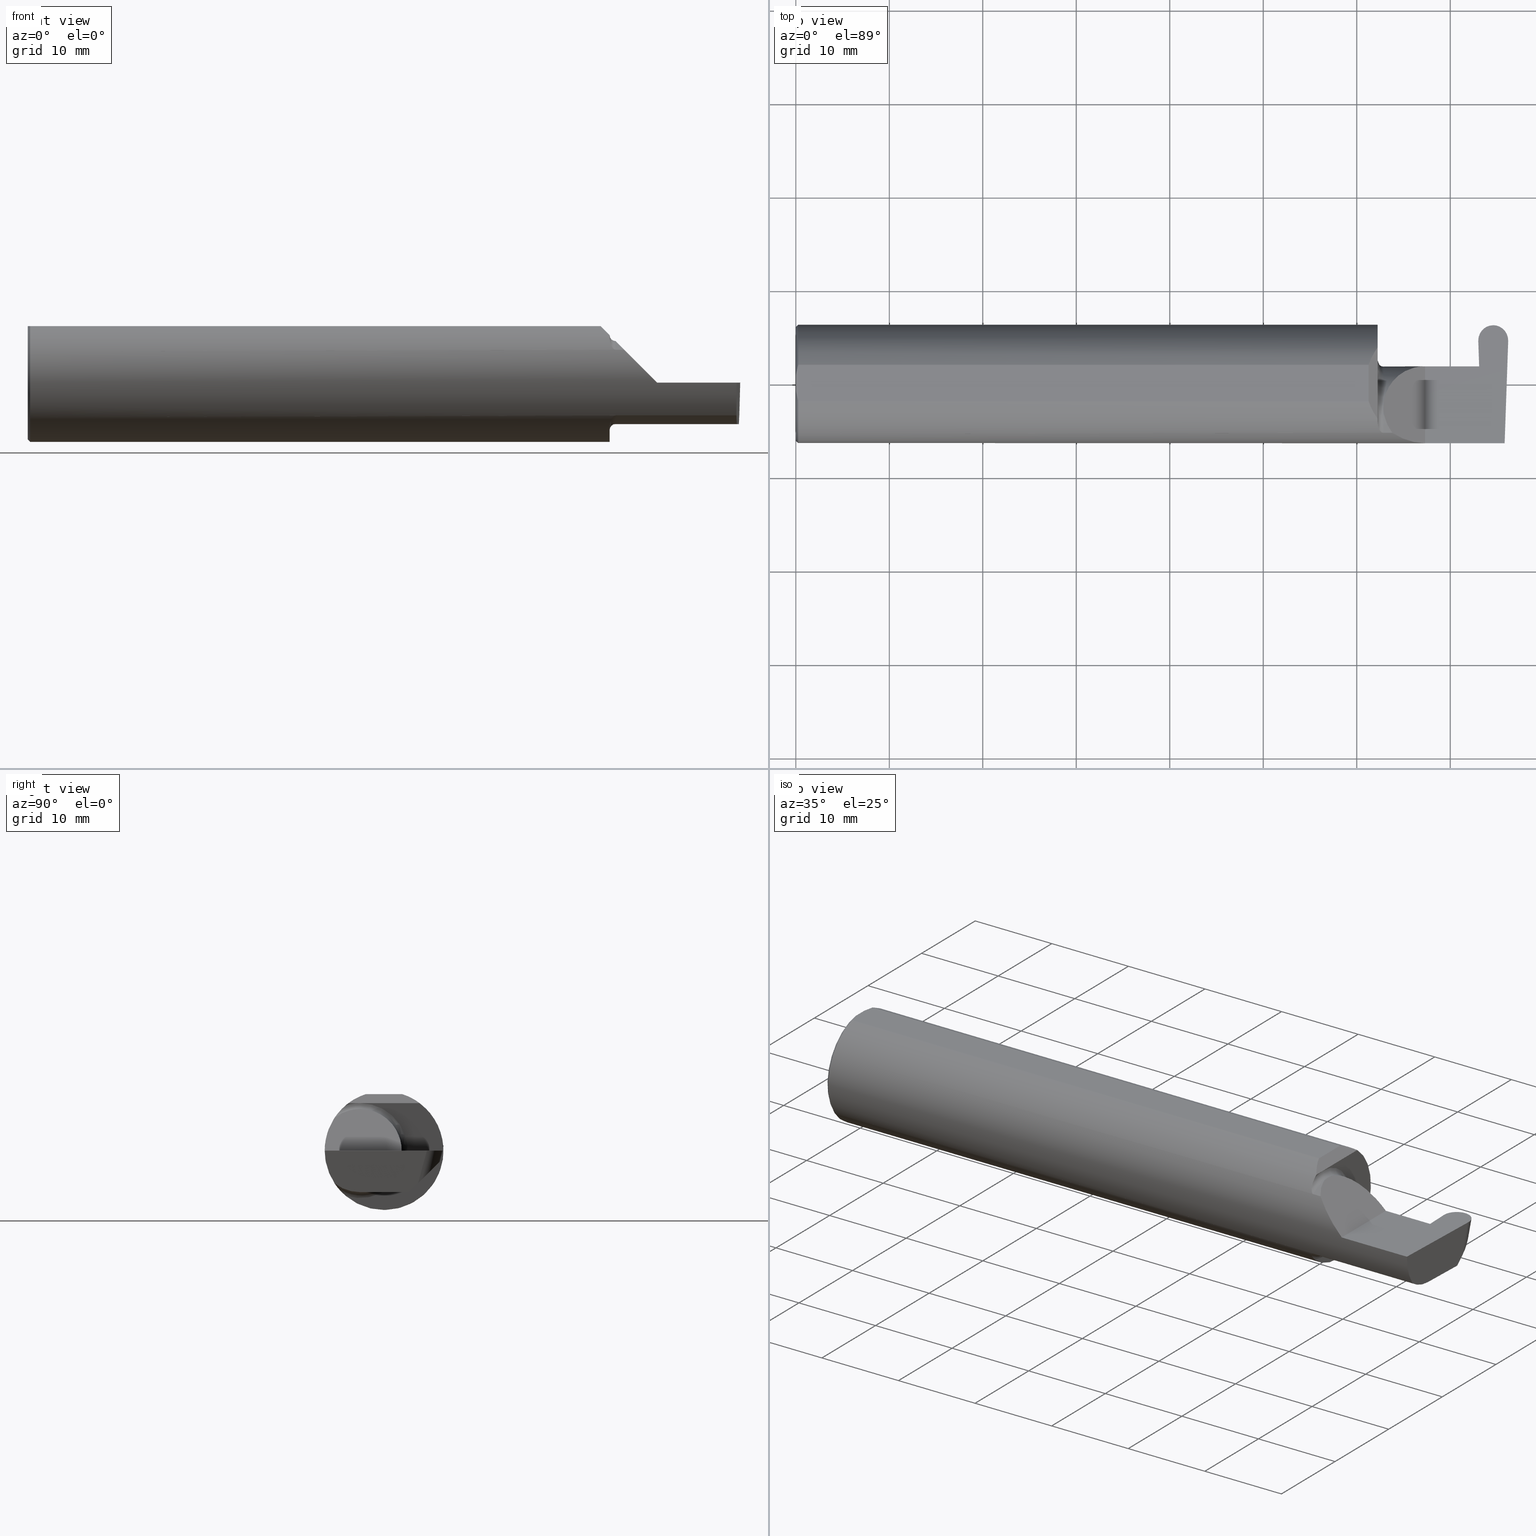
[diagram: canonical four-view strip — front | top / right | iso, engineering-drawing reading convention]
A machine part, canonical four-view strip (front | top / right | iso — engineering-drawing reading convention). The complete STEP part file that produces these views, byte-faithful:
ISO-10303-21;
HEADER;
FILE_DESCRIPTION (( 'STEP AP203' ),
    '1' );
FILE_NAME ('222485-GFR125-8.STEP',
    '2024-06-28T19:19:13',
    ( '' ),
    ( '' ),
    'SwSTEP 2.0',
    'SolidWorks 2024',
    '' );
FILE_SCHEMA (( 'CONFIG_CONTROL_DESIGN' ));
ENDSEC;

DATA;
#1 = CARTESIAN_POINT ( 'NONE',  ( 0.000000000000000000, 0.000000000000000000, 0.000000000000000000 ) ) ;
#2 = EDGE_CURVE ( 'NONE', #145, #468, #256, .T. ) ;
#3 = DIRECTION ( 'NONE',  ( -1.000000000000000000, -0.000000000000000000, -0.000000000000000000 ) ) ;
#4 = CARTESIAN_POINT ( 'NONE',  ( 2.450000000000000178, -0.1616050818046600723, 0.1905487340154983222 ) ) ;
#5 = AXIS2_PLACEMENT_3D ( 'NONE', #664, #14, #370 ) ;
#6 = CIRCLE ( 'NONE', #734, 0.2498499999999999888 ) ;
#7 = APPLICATION_PROTOCOL_DEFINITION ( 'international standard', 'config_control_design', 1994, #684 ) ;
#8 = B_SPLINE_CURVE_WITH_KNOTS ( 'NONE', 3,
 ( #4, #796, #311, #618, #494, #77, #71, #63, #298, #481, #314, #490, #673, #362 ),
 .UNSPECIFIED., .F., .F.,
 ( 4, 2, 2, 2, 2, 2, 4 ),
 ( 0.0003834465838148106917, 0.0008781406165086602222, 0.001372834649202509753, 0.001867528681896359283, 0.002114875698243287843, 0.002238549206416752015, 0.002362222714590216620 ),
 .UNSPECIFIED. ) ;
#9 = APPROVAL_PERSON_ORGANIZATION ( #596, #94, #722 ) ;
#10 = LINE ( 'NONE', #268, #450 ) ;
#11 = FACE_OUTER_BOUND ( 'NONE', #348, .T. ) ;
#12 = CC_DESIGN_DATE_AND_TIME_ASSIGNMENT ( #119, #248, ( #253 ) ) ;
#13 = FACE_OUTER_BOUND ( 'NONE', #463, .T. ) ;
#14 = DIRECTION ( 'NONE',  ( 1.000000000000000000, 0.000000000000000000, 0.000000000000000000 ) ) ;
#15 = CARTESIAN_POINT ( 'NONE',  ( 2.674394314999999800, -0.2080850024789289432, 0.1382955322609669135 ) ) ;
#16 = CARTESIAN_POINT ( 'NONE',  ( 0.000000000000000000, -0.07650098038587520299, 0.2378499999999998671 ) ) ;
#17 = ORIENTED_EDGE ( 'NONE', *, *, #58, .T. ) ;
#18 = ADVANCED_FACE ( 'NONE', ( #715 ), #115, .F. ) ;
#19 = EDGE_CURVE ( 'NONE', #163, #177, #428, .T. ) ;
#20 = CARTESIAN_POINT ( 'NONE',  ( 2.984591634083985756, -0.1771157075472505615, -0.1623092683844333806 ) ) ;
#21 =( BOUNDED_CURVE ( )  B_SPLINE_CURVE ( 3, ( #201, #136, #620, #138 ),
 .UNSPECIFIED., .F., .F. ) 
 B_SPLINE_CURVE_WITH_KNOTS ( ( 4, 4 ),
 ( 4.712388980384701220, 4.724678304898034753 ),
 .UNSPECIFIED. ) 
 CURVE ( )  GEOMETRIC_REPRESENTATION_ITEM ( )  RATIONAL_B_SPLINE_CURVE ( ( 1.000000000000000000, 0.9999874144148499511, 0.9999874144148499511, 1.000000000000000000 ) ) 
 REPRESENTATION_ITEM ( '' )  );
#22 = CARTESIAN_POINT ( 'NONE',  ( 2.511704467739031887, -0.2080850024789288322, 0.1382955322609670523 ) ) ;
#23 = ORIENTED_EDGE ( 'NONE', *, *, #635, .F. ) ;
#24 = CARTESIAN_POINT ( 'NONE',  ( 2.473318040126430084, -0.2080850024789288322, -0.1382955322609669968 ) ) ;
#25 = CARTESIAN_POINT ( 'NONE',  ( 2.937353904765460655, 0.2471499999999999808, 0.000000000000000000 ) ) ;
#26 = VERTEX_POINT ( 'NONE', #610 ) ;
#27 = CARTESIAN_POINT ( 'NONE',  ( 2.462579853086619419, -0.2024300470081732695, -0.1464774911482688291 ) ) ;
#28 = ADVANCED_FACE ( 'NONE', ( #74 ), #252, .T. ) ;
#29 = PLANE ( 'NONE',  #499 ) ;
#30 = ORIENTED_EDGE ( 'NONE', *, *, #189, .T. ) ;
#31 = ORIENTED_EDGE ( 'NONE', *, *, #556, .T. ) ;
#32 = VECTOR ( 'NONE', #435, 39.37007874015748143 ) ;
#33 = DIRECTION ( 'NONE',  ( 0.000000000000000000, -1.000000000000000000, 0.000000000000000000 ) ) ;
#34 = AXIS2_PLACEMENT_3D ( 'NONE', #155, #770, #467 ) ;
#35 = LINE ( 'NONE', #274, #121 ) ;
#36 = VERTEX_POINT ( 'NONE', #486 ) ;
#37 =( BOUNDED_CURVE ( )  B_SPLINE_CURVE ( 3, ( #396, #645, #704, #161 ),
 .UNSPECIFIED., .F., .T. ) 
 B_SPLINE_CURVE_WITH_KNOTS ( ( 4, 4 ),
 ( 3.138929695171530643, 4.726629019293366873 ),
 .UNSPECIFIED. ) 
 CURVE ( )  GEOMETRIC_REPRESENTATION_ITEM ( )  RATIONAL_B_SPLINE_CURVE ( ( 1.000000000000000000, 0.8007369912750499363, 0.8007369912750499363, 1.000000000000000000 ) ) 
 REPRESENTATION_ITEM ( '' )  );
#38 = CARTESIAN_POINT ( 'NONE',  ( 2.475000000000000089, -0.2080850024789288044, 0.1382955322609670523 ) ) ;
#39 = LINE ( 'NONE', #54, #592 ) ;
#40 = EDGE_LOOP ( 'NONE', ( #276, #87, #31, #647 ) ) ;
#41 = VERTEX_POINT ( 'NONE', #729 ) ;
#42 = DIRECTION ( 'NONE',  ( -0.000000000000000000, 1.223176342469858124E-16, 1.000000000000000000 ) ) ;
#43 = DIRECTION ( 'NONE',  ( -1.000000000000000000, -2.820234929918045414E-16, -0.000000000000000000 ) ) ;
#44 =( BOUNDED_CURVE ( )  B_SPLINE_CURVE ( 3, ( #663, #485, #117, #61 ),
 .UNSPECIFIED., .F., .F. ) 
 B_SPLINE_CURVE_WITH_KNOTS ( ( 4, 4 ),
 ( 6.160376845738953833, 6.746954780470613144 ),
 .UNSPECIFIED. ) 
 CURVE ( )  GEOMETRIC_REPRESENTATION_ITEM ( )  RATIONAL_B_SPLINE_CURVE ( ( 1.000000000000000000, 0.9715321379117536349, 0.9715321379117536349, 1.000000000000000000 ) ) 
 REPRESENTATION_ITEM ( '' )  );
#45 = ORIENTED_EDGE ( 'NONE', *, *, #710, .F. ) ;
#46 = DIRECTION ( 'NONE',  ( 0.02590004391968258463, 0.2587322210431824421, 0.9656017944882975268 ) ) ;
#47 = CARTESIAN_POINT ( 'NONE',  ( 2.650000000000000355, 0.07414999999999984104, 4.286263797015729199E-17 ) ) ;
#48 = AXIS2_PLACEMENT_3D ( 'NONE', #679, #237, #419 ) ;
#49 = VECTOR ( 'NONE', #578, 39.37007874015748143 ) ;
#50 = ORIENTED_EDGE ( 'NONE', *, *, #351, .T. ) ;
#51 = CC_DESIGN_SECURITY_CLASSIFICATION ( #100, ( #766 ) ) ;
#52 = ORIENTED_EDGE ( 'NONE', *, *, #575, .T. ) ;
#53 = LINE ( 'NONE', #709, #320 ) ;
#54 = CARTESIAN_POINT ( 'NONE',  ( 2.996896011933845472, 0.1563248983306043671, -0.1244994388175648253 ) ) ;
#55 = ORIENTED_EDGE ( 'NONE', *, *, #427, .T. ) ;
#56 = DATE_AND_TIME ( #544, #539 ) ;
#57 = CARTESIAN_POINT ( 'NONE',  ( 3.402190948718819996, -0.1008499999999993291, -0.1750000000000000722 ) ) ;
#58 = EDGE_CURVE ( 'NONE', #41, #689, #561, .T. ) ;
#59 = ORIENTED_EDGE ( 'NONE', *, *, #427, .F. ) ;
#60 = APPLICATION_PROTOCOL_DEFINITION ( 'international standard', 'config_control_design', 1994, #735 ) ;
#61 = CARTESIAN_POINT ( 'NONE',  ( 2.984886542352623628, -0.2498499999999999888, 0.000000000000000000 ) ) ;
#62 = AXIS2_PLACEMENT_3D ( 'NONE', #380, #141, #198 ) ;
#63 = CARTESIAN_POINT ( 'NONE',  ( 2.462616400345754908, -0.2024684335577099925, 0.1464246884265640869 ) ) ;
#64 = ADVANCED_FACE ( 'NONE', ( #602 ), #681, .T. ) ;
#65 = PERSON_AND_ORGANIZATION_ROLE ( 'creator' ) ;
#66 = CARTESIAN_POINT ( 'NONE',  ( -3.937007874019685528E-05, 0.2471499999999999808, 0.000000000000000000 ) ) ;
#67 = DIRECTION ( 'NONE',  ( 0.000000000000000000, 1.000000000000000000, 0.000000000000000000 ) ) ;
#68 = EDGE_CURVE ( 'NONE', #730, #703, #8, .T. ) ;
#69 = APPROVAL_DATE_TIME ( #665, #147 ) ;
#70 = CARTESIAN_POINT ( 'NONE',  ( 2.866439859938323398, 0.07404339472834127467, -0.006107411922952113263 ) ) ;
#71 = CARTESIAN_POINT ( 'NONE',  ( 2.458182335268384477, -0.1972192205116128361, 0.1535061413537212593 ) ) ;
#72 = DIRECTION ( 'NONE',  ( 0.000000000000000000, 0.000000000000000000, 1.000000000000000000 ) ) ;
#73 = PLANE ( 'NONE',  #438 ) ;
#74 = FACE_OUTER_BOUND ( 'NONE', #385, .T. ) ;
#75 = CIRCLE ( 'NONE', #514, 0.2498499999999999888 ) ;
#76 = CARTESIAN_POINT ( 'NONE',  ( 2.450000000000000178, 0.07404339472834142732, -0.006107411922944308742 ) ) ;
#77 = CARTESIAN_POINT ( 'NONE',  ( 2.456159563508733878, -0.1933019864360846773, 0.1584298865564834069 ) ) ;
#78 = EDGE_CURVE ( 'NONE', #771, #591, #123, .T. ) ;
#79 = EDGE_CURVE ( 'NONE', #469, #535, #793, .T. ) ;
#80 = ORIENTED_EDGE ( 'NONE', *, *, #587, .F. ) ;
#81 = CARTESIAN_POINT ( 'NONE',  ( 0.000000000000000000, 0.000000000000000000, 0.000000000000000000 ) ) ;
#82 = LINE ( 'NONE', #453, #122 ) ;
#83 = ORIENTED_EDGE ( 'NONE', *, *, #635, .T. ) ;
#84 = CIRCLE ( 'NONE', #134, 0.1750000000000000444 ) ;
#85 = CARTESIAN_POINT ( 'NONE',  ( 2.475000000000000089, -0.2080850024789288322, -0.1382955322609670523 ) ) ;
#86 = FACE_OUTER_BOUND ( 'NONE', #465, .T. ) ;
#87 = ORIENTED_EDGE ( 'NONE', *, *, #440, .T. ) ;
#88 = ADVANCED_FACE ( 'NONE', ( #606 ), #242, .T. ) ;
#89 = FACE_OUTER_BOUND ( 'NONE', #462, .T. ) ;
#90 = DIRECTION ( 'NONE',  ( -1.000000000000000000, -2.820234929918045414E-16, -0.000000000000000000 ) ) ;
#91 = ORIENTED_EDGE ( 'NONE', *, *, #214, .T. ) ;
#92 = CARTESIAN_POINT ( 'NONE',  ( 2.450000000000000178, 0.1497498664440163330, 0.1999999999999982903 ) ) ;
#93 = FACE_OUTER_BOUND ( 'NONE', #706, .T. ) ;
#94 = APPROVAL ( #475, 'UNSPECIFIED' ) ;
#95 = ORIENTED_EDGE ( 'NONE', *, *, #214, .F. ) ;
#96 = ORIENTED_EDGE ( 'NONE', *, *, #245, .F. ) ;
#97 = AXIS2_PLACEMENT_3D ( 'NONE', #685, #148, #567 ) ;
#98 = CARTESIAN_POINT ( 'NONE',  ( 2.877587758332053269, 0.07414999999999977165, 0.000000000000000000 ) ) ;
#99 = ORIENTED_EDGE ( 'NONE', *, *, #357, .T. ) ;
#100 = SECURITY_CLASSIFICATION ( '', '', #741 ) ;
#101 = LINE ( 'NONE', #210, #49 ) ;
#102 = CARTESIAN_POINT ( 'NONE',  ( 2.450000000000000178, -0.1008500000000001895, 0.1999999999999982070 ) ) ;
#103 = EDGE_LOOP ( 'NONE', ( #717, #657, #473 ) ) ;
#104 = CARTESIAN_POINT ( 'NONE',  ( 2.433375685911487007, 0.1275470899297183047, 0.2166243140885106555 ) ) ;
#105 = DIRECTION ( 'NONE',  ( -0.02590004391968258463, -0.2587322210431824421, -0.9656017944882975268 ) ) ;
#106 = ORIENTED_EDGE ( 'NONE', *, *, #2, .F. ) ;
#107 = ADVANCED_FACE ( 'NONE', ( #11 ), #303, .F. ) ;
#108 = VERTEX_POINT ( 'NONE', #130 ) ;
#109 =( CONVERSION_BASED_UNIT ( 'INCH', #652 ) LENGTH_UNIT ( ) NAMED_UNIT ( #259 ) );
#110 = DIRECTION ( 'NONE',  ( 0.000000000000000000, 0.000000000000000000, -1.000000000000000000 ) ) ;
#111 = TOROIDAL_SURFACE ( 'NONE', #616, 0.2000000000000001221, 0.02500000000000006731 ) ;
#112 = ORIENTED_EDGE ( 'NONE', *, *, #580, .F. ) ;
#113 = MECHANICAL_CONTEXT ( 'NONE', #735, 'mechanical' ) ;
#114 = DIRECTION ( 'NONE',  ( -0.000000000000000000, 1.000000000000000000, -0.000000000000000000 ) ) ;
#115 = PLANE ( 'NONE',  #5 ) ;
#116 = PERSON_AND_ORGANIZATION ( #548, #206 ) ;
#117 = CARTESIAN_POINT ( 'NONE',  ( 2.984020840019027343, -0.2498500000000000443, -0.04956584089959705647 ) ) ;
#118 = CARTESIAN_POINT ( 'NONE',  ( 2.412149999999998240, -0.2500000000000000555, 0.2378499999999998948 ) ) ;
#119 = DATE_AND_TIME ( #365, #791 ) ;
#120 = FACE_OUTER_BOUND ( 'NONE', #239, .T. ) ;
#121 = VECTOR ( 'NONE', #325, 39.37007874015748143 ) ;
#122 = VECTOR ( 'NONE', #697, 39.37007874015748854 ) ;
#123 = LINE ( 'NONE', #128, #295 ) ;
#124 = ORIENTED_EDGE ( 'NONE', *, *, #19, .T. ) ;
#125 =( BOUNDED_CURVE ( )  B_SPLINE_CURVE ( 3, ( #251, #137, #262, #558 ),
 .UNSPECIFIED., .F., .F. ) 
 B_SPLINE_CURVE_WITH_KNOTS ( ( 4, 4 ),
 ( 1.556556287886220469, 3.144255612008072021 ),
 .UNSPECIFIED. ) 
 CURVE ( )  GEOMETRIC_REPRESENTATION_ITEM ( )  RATIONAL_B_SPLINE_CURVE ( ( 1.000000000000000000, 0.8007369912750462726, 0.8007369912750462726, 1.000000000000000000 ) ) 
 REPRESENTATION_ITEM ( '' )  );
#126 = PERSON_AND_ORGANIZATION ( #548, #206 ) ;
#127 = FACE_OUTER_BOUND ( 'NONE', #783, .T. ) ;
#128 = CARTESIAN_POINT ( 'NONE',  ( 2.674394314999999800, -0.2080850024789289432, -0.1382955322609669135 ) ) ;
#129 = CARTESIAN_POINT ( 'NONE',  ( 2.866510930119428924, 0.07411446490944693932, -0.002035803974317372967 ) ) ;
#130 = CARTESIAN_POINT ( 'NONE',  ( 0.009999999999999927350, 0.000000000000000000, -0.2498499999999999888 ) ) ;
#131 = ADVANCED_FACE ( 'NONE', ( #546 ), #203, .T. ) ;
#132 = PLANE ( 'NONE',  #310 ) ;
#133 = CARTESIAN_POINT ( 'NONE',  ( 2.936434725234540632, 0.2471499999999999808, 0.000000000000000000 ) ) ;
#134 = AXIS2_PLACEMENT_3D ( 'NONE', #167, #211, #701 ) ;
#135 = DIRECTION ( 'NONE',  ( 0.000000000000000000, 0.000000000000000000, 1.000000000000000000 ) ) ;
#136 = CARTESIAN_POINT ( 'NONE',  ( 2.936894315000000866, 0.2399798948975103985, -0.02675919653809980328 ) ) ;
#137 = CARTESIAN_POINT ( 'NONE',  ( 2.874814236522603039, 0.1959989092472255445, -0.08482542790094320384 ) ) ;
#138 = CARTESIAN_POINT ( 'NONE',  ( 2.936894315000000866, 0.2348176093011050958, -0.04600672784706322238 ) ) ;
#139 = ORIENTED_EDGE ( 'NONE', *, *, #328, .T. ) ;
#140 = CARTESIAN_POINT ( 'NONE',  ( 2.866439859938323398, 0.07404339472834127467, -0.006107411922952113263 ) ) ;
#141 = DIRECTION ( 'NONE',  ( -1.224646799147351975E-16, 0.000000000000000000, -1.000000000000000000 ) ) ;
#142 = ORIENTED_EDGE ( 'NONE', *, *, #270, .T. ) ;
#143 = CARTESIAN_POINT ( 'NONE',  ( 2.866546465209982131, 0.07414999999999977165, 0.000000000000000000 ) ) ;
#144 = CARTESIAN_POINT ( 'NONE',  ( 2.999898068948996244, 0.1800238777770215015, 0.000000000000000000 ) ) ;
#145 = VERTEX_POINT ( 'NONE', #557 ) ;
#146 = EDGE_CURVE ( 'NONE', #654, #588, #374, .T. ) ;
#147 = APPROVAL ( #479, 'UNSPECIFIED' ) ;
#148 = DIRECTION ( 'NONE',  ( 0.000000000000000000, -0.9659258262890682012, 0.2588190451025209060 ) ) ;
#149 = CARTESIAN_POINT ( 'NONE',  ( 2.873827072278243744, 0.1818419583544338691, 0.000000000000000000 ) ) ;
#150 = VERTEX_POINT ( 'NONE', #668 ) ;
#151 =( LENGTH_UNIT ( ) NAMED_UNIT ( * ) SI_UNIT ( $, .METRE. ) );
#152 = CARTESIAN_POINT ( 'NONE',  ( 2.475000000000000089, -0.1008500000000001340, 0.000000000000000000 ) ) ;
#153 = ORIENTED_EDGE ( 'NONE', *, *, #235, .T. ) ;
#154 = ADVANCED_FACE ( 'NONE', ( #247 ), #393, .F. ) ;
#155 = CARTESIAN_POINT ( 'NONE',  ( 2.450000000000000178, -0.1008500000000001340, 0.000000000000000000 ) ) ;
#156 = VERTEX_POINT ( 'NONE', #25 ) ;
#157 = PLANE ( 'NONE',  #629 ) ;
#158 = CARTESIAN_POINT ( 'NONE',  ( 2.877583938758738746, 0.1431283489340403614, -0.1376959882141290115 ) ) ;
#159 = ADVANCED_FACE ( 'NONE', ( #86 ), #29, .F. ) ;
#160 = EDGE_LOOP ( 'NONE', ( #354, #227, #96, #472, #650 ) ) ;
#161 = CARTESIAN_POINT ( 'NONE',  ( 2.996204691241262985, 0.1431283489340402226, -0.1376959882141291225 ) ) ;
#162 = CARTESIAN_POINT ( 'NONE',  ( 2.650000000000000355, -0.2500000000000000555, 4.286263797015729199E-17 ) ) ;
#163 = VERTEX_POINT ( 'NONE', #637 ) ;
#164 = ORIENTED_EDGE ( 'NONE', *, *, #498, .F. ) ;
#165 = CYLINDRICAL_SURFACE ( 'NONE', #707, 0.1750000000000000444 ) ;
#166 = AXIS2_PLACEMENT_3D ( 'NONE', #367, #554, #184 ) ;
#167 = CARTESIAN_POINT ( 'NONE',  ( 2.475000000000000089, -0.1008500000000001340, 0.000000000000000000 ) ) ;
#168 = VECTOR ( 'NONE', #437, 39.37007874015748143 ) ;
#169 = CARTESIAN_POINT ( 'NONE',  ( 2.474999999999998757, -0.1400387324517231580, 0.1750000000000000444 ) ) ;
#170 = CC_DESIGN_APPROVAL ( #94, ( #766 ) ) ;
#171 = PERSON_AND_ORGANIZATION ( #548, #206 ) ;
#172 = PLANE ( 'NONE',  #552 ) ;
#173 = ORIENTED_EDGE ( 'NONE', *, *, #68, .T. ) ;
#174 = ADVANCED_FACE ( 'NONE', ( #93 ), #510, .T. ) ;
#175 = DIRECTION ( 'NONE',  ( 0.000000000000000000, -1.000000000000000000, 0.000000000000000000 ) ) ;
#176 = CARTESIAN_POINT ( 'NONE',  ( 2.872525856337140748, 0.2191039076196378277, 1.561681923312281264E-17 ) ) ;
#177 = VERTEX_POINT ( 'NONE', #574 ) ;
#178 = DATE_AND_TIME ( #182, #491 ) ;
#179 = DIRECTION ( 'NONE',  ( 0.000000000000000000, 0.000000000000000000, -1.000000000000000000 ) ) ;
#180 = VECTOR ( 'NONE', #762, 39.37007874015748143 ) ;
#181 =( GEOMETRIC_REPRESENTATION_CONTEXT ( 3 ) GLOBAL_UNCERTAINTY_ASSIGNED_CONTEXT ( ( #660 ) ) GLOBAL_UNIT_ASSIGNED_CONTEXT ( ( #109, #466, #718 ) ) REPRESENTATION_CONTEXT ( 'NONE', 'WORKASPACE' ) );
#182 = CALENDAR_DATE ( 2024, 28, 6 ) ;
#183 = DIRECTION ( 'NONE',  ( 0.01806679408117574034, 0.000000000000000000, -0.9998367821557817559 ) ) ;
#184 = DIRECTION ( 'NONE',  ( -2.820234929918045414E-16, 1.000000000000000000, 0.000000000000000000 ) ) ;
#185 = EDGE_CURVE ( 'NONE', #547, #469, #35, .T. ) ;
#186 = ORIENTED_EDGE ( 'NONE', *, *, #78, .F. ) ;
#187 = DIRECTION ( 'NONE',  ( -1.000000000000000000, -0.000000000000000000, -0.000000000000000000 ) ) ;
#188 = DIRECTION ( 'NONE',  ( -0.03489949670249505725, -0.9993908270190959842, 0.000000000000000000 ) ) ;
#189 = EDGE_CURVE ( 'NONE', #515, #156, #455, .T. ) ;
#190 = FACE_OUTER_BOUND ( 'NONE', #103, .T. ) ;
#191 = CARTESIAN_POINT ( 'NONE',  ( 2.600434159100402987, -0.2498499999999999610, 0.04956584089959713973 ) ) ;
#192 = AXIS2_PLACEMENT_3D ( 'NONE', #152, #476, #175 ) ;
#193 = DIRECTION ( 'NONE',  ( -0.03701744261649780876, 0.7066221440565400025, 0.7066221440565478851 ) ) ;
#194 = CC_DESIGN_DATE_AND_TIME_ASSIGNMENT ( #726, #359, ( #100 ) ) ;
#195 = CARTESIAN_POINT ( 'NONE',  ( 3.001262773662860095, 0.2191039076196375224, 6.568846353850022780E-19 ) ) ;
#196 = VERTEX_POINT ( 'NONE', #513 ) ;
#197 = EDGE_CURVE ( 'NONE', #515, #150, #445, .T. ) ;
#198 = DIRECTION ( 'NONE',  ( -1.000000000000000000, 0.000000000000000000, 1.224646799147351975E-16 ) ) ;
#199 = ORIENTED_EDGE ( 'NONE', *, *, #529, .F. ) ;
#200 = CARTESIAN_POINT ( 'NONE',  ( 2.936434725234540632, 0.2471499999999999808, 0.000000000000000000 ) ) ;
#201 = CARTESIAN_POINT ( 'NONE',  ( 2.936894314999999533, 0.2425588618090720738, -0.01713436099311286751 ) ) ;
#202 = ORIENTED_EDGE ( 'NONE', *, *, #197, .T. ) ;
#203 = CONICAL_SURFACE ( 'NONE', #747, 0.2398500000000001742, 0.7853981633974431720 ) ;
#204 = VECTOR ( 'NONE', #512, 39.37007874015748143 ) ;
#205 = PLANE ( 'NONE',  #273 ) ;
#206 = ORGANIZATION ( 'UNSPECIFIED', 'UNSPECIFIED', '' ) ;
#207 = CARTESIAN_POINT ( 'NONE',  ( 2.552984868485331571, -0.2355204011147991605, 0.09701513151466779894 ) ) ;
#208 = ORIENTED_EDGE ( 'NONE', *, *, #556, .F. ) ;
#209 = EDGE_CURVE ( 'NONE', #353, #644, #266, .T. ) ;
#210 = CARTESIAN_POINT ( 'NONE',  ( 0.000000000000000000, 0.07650098038587520299, 0.2378499999999998671 ) ) ;
#211 = DIRECTION ( 'NONE',  ( -1.000000000000000000, -2.820234929918045414E-16, -0.000000000000000000 ) ) ;
#212 = EDGE_LOOP ( 'NONE', ( #595, #52, #153, #778, #487 ) ) ;
#213 = EDGE_CURVE ( 'NONE', #390, #145, #420, .T. ) ;
#214 = EDGE_CURVE ( 'NONE', #349, #36, #272, .T. ) ;
#215 = CARTESIAN_POINT ( 'NONE',  ( 2.450000000000000178, -0.1497498664440164995, 0.1999999999999982070 ) ) ;
#216 = LINE ( 'NONE', #293, #670 ) ;
#217 = ORIENTED_EDGE ( 'NONE', *, *, #401, .T. ) ;
#218 = AXIS2_PLACEMENT_3D ( 'NONE', #628, #90, #568 ) ;
#219 = CIRCLE ( 'NONE', #246, 0.2498499999999999888 ) ;
#220 = CARTESIAN_POINT ( 'NONE',  ( 2.456147634408387681, -0.1932733126899457698, -0.1584637047788200748 ) ) ;
#221 = CARTESIAN_POINT ( 'NONE',  ( 2.547487373415291412, 0.07414999999999992430, 0.1025126265847084162 ) ) ;
#222 = ORIENTED_EDGE ( 'NONE', *, *, #2, .T. ) ;
#223 = LINE ( 'NONE', #57, #775 ) ;
#224 = VERTEX_POINT ( 'NONE', #753 ) ;
#225 = CARTESIAN_POINT ( 'NONE',  ( 2.475000000000000089, -0.1008500000000001895, 0.1749999999999984346 ) ) ;
#226 = ORIENTED_EDGE ( 'NONE', *, *, #484, .T. ) ;
#227 = ORIENTED_EDGE ( 'NONE', *, *, #739, .F. ) ;
#228 = CLOSED_SHELL ( 'NONE', ( #131, #788, #674, #159, #433, #300, #18, #64, #640, #376, #522, #28, #174, #727, #699, #667, #509, #154, #107, #495, #449, #88 ) ) ;
#229 = PERSON_AND_ORGANIZATION ( #548, #206 ) ;
#230 = VECTOR ( 'NONE', #672, 39.37007874015748143 ) ;
#231 = DIRECTION ( 'NONE',  ( -0.7071067811865439090, 0.000000000000000000, -0.7071067811865511255 ) ) ;
#232 = AXIS2_PLACEMENT_3D ( 'NONE', #597, #404, #110 ) ;
#233 = ADVANCED_BREP_SHAPE_REPRESENTATION ( '222485-GFR125-8', ( #765, #312 ), #181 ) ;
#234 = ORIENTED_EDGE ( 'NONE', *, *, #275, .T. ) ;
#235 = EDGE_CURVE ( 'NONE', #353, #547, #82, .T. ) ;
#236 = CALENDAR_DATE ( 2024, 28, 6 ) ;
#237 = DIRECTION ( 'NONE',  ( 1.000000000000000000, 2.820234929918045414E-16, 0.000000000000000000 ) ) ;
#238 = DIRECTION ( 'NONE',  ( -0.9992386149554828290, 0.03489418134010775774, 0.01745240643728358798 ) ) ;
#239 = EDGE_LOOP ( 'NONE', ( #395, #319, #511 ) ) ;
#240 = APPROVAL_ROLE ( '' ) ;
#241 = CARTESIAN_POINT ( 'NONE',  ( 2.881751263448093514, -2.813289441922686596, -0.1800126308514063134 ) ) ;
#242 = CYLINDRICAL_SURFACE ( 'NONE', #551, 0.06300000000000000044 ) ;
#243 = ORIENTED_EDGE ( 'NONE', *, *, #409, .F. ) ;
#244 = LINE ( 'NONE', #489, #411 ) ;
#245 = EDGE_CURVE ( 'NONE', #598, #26, #21, .T. ) ;
#246 = AXIS2_PLACEMENT_3D ( 'NONE', #347, #400, #458 ) ;
#247 = FACE_OUTER_BOUND ( 'NONE', #326, .T. ) ;
#248 = DATE_TIME_ROLE ( 'creation_date' ) ;
#249 = DIRECTION ( 'NONE',  ( 0.9998367324388628408, 0.0003153570480505199394, 0.01806679318280377325 ) ) ;
#250 = CARTESIAN_POINT ( 'NONE',  ( 2.936830367926423602, 0.1823443432594142322, 0.001555304651110660588 ) ) ;
#251 = CARTESIAN_POINT ( 'NONE',  ( 2.877583938758738746, 0.1431283489340403614, -0.1376959882141290115 ) ) ;
#252 = PLANE ( 'NONE',  #166 ) ;
#253 = PRODUCT_DEFINITION ( 'UNKNOWN', '', #766, #289 ) ;
#254 =( BOUNDED_CURVE ( )  B_SPLINE_CURVE ( 3, ( #528, #780, #104, #399 ),
 .UNSPECIFIED., .F., .F. ) 
 B_SPLINE_CURVE_WITH_KNOTS ( ( 4, 4 ),
 ( 0.3111857320071445554, 0.6427002007837625541 ),
 .UNSPECIFIED. ) 
 CURVE ( )  GEOMETRIC_REPRESENTATION_ITEM ( )  RATIONAL_B_SPLINE_CURVE ( ( 1.000000000000000000, 0.9908624633578575480, 0.9908624633578575480, 1.000000000000000000 ) ) 
 REPRESENTATION_ITEM ( '' )  );
#255 = CARTESIAN_POINT ( 'NONE',  ( 2.877698151322465314, 0.07404339472834124691, -0.006107411922953761250 ) ) ;
#256 =( BOUNDED_CURVE ( )  B_SPLINE_CURVE ( 3, ( #290, #415, #169, #661 ),
 .UNSPECIFIED., .F., .T. ) 
 B_SPLINE_CURVE_WITH_KNOTS ( ( 4, 4 ),
 ( 5.623622464215682903, 6.283185307179586232 ),
 .UNSPECIFIED. ) 
 CURVE ( )  GEOMETRIC_REPRESENTATION_ITEM ( )  RATIONAL_B_SPLINE_CURVE ( ( 1.000000000000000000, 0.9640754331822833922, 0.9640754331822833922, 1.000000000000000000 ) ) 
 REPRESENTATION_ITEM ( '' )  );
#257 = DIRECTION ( 'NONE',  ( 1.000000000000000000, 0.000000000000000000, 0.000000000000000000 ) ) ;
#258 = VECTOR ( 'NONE', #550, 39.37007874015748854 ) ;
#259 = DIMENSIONAL_EXPONENTS ( 1.000000000000000000, 0.000000000000000000, 0.000000000000000000, 0.000000000000000000, 0.000000000000000000, 0.000000000000000000, 0.000000000000000000 ) ;
#260 = ORIENTED_EDGE ( 'NONE', *, *, #270, .F. ) ;
#261 = VECTOR ( 'NONE', #287, 39.37007874015748854 ) ;
#262 = CARTESIAN_POINT ( 'NONE',  ( 2.899504147978141155, 0.2341676052385955886, -0.04665673190957270872 ) ) ;
#263 = CARTESIAN_POINT ( 'NONE',  ( 0.009999999999999927350, 0.07650098038587520299, 0.2378499999999998671 ) ) ;
#264 = ORIENTED_EDGE ( 'NONE', *, *, #275, .F. ) ;
#265 = CARTESIAN_POINT ( 'NONE',  ( 2.880805159919762826, -0.1008500000000000368, -0.1750000000000000444 ) ) ;
#266 = LINE ( 'NONE', #517, #180 ) ;
#267 = ORIENTED_EDGE ( 'NONE', *, *, #379, .F. ) ;
#268 = CARTESIAN_POINT ( 'NONE',  ( 2.873827072278243744, 0.1818419583544338691, 0.000000000000000000 ) ) ;
#269 = CARTESIAN_POINT ( 'NONE',  ( 2.975131077857207096, 0.2471499999999997033, 3.857094397853548795E-18 ) ) ;
#270 = EDGE_CURVE ( 'NONE', #224, #163, #559, .T. ) ;
#271 = EDGE_LOOP ( 'NONE', ( #173, #708, #55, #581, #398, #651 ) ) ;
#272 = B_SPLINE_CURVE_WITH_KNOTS ( 'NONE', 3,
 ( #439, #755, #686, #263 ),
 .UNSPECIFIED., .F., .F.,
 ( 4, 4 ),
 ( 0.01593449416844765903, 0.01712021724825598876 ),
 .UNSPECIFIED. ) ;
#273 = AXIS2_PLACEMENT_3D ( 'NONE', #388, #555, #632 ) ;
#274 = CARTESIAN_POINT ( 'NONE',  ( -3.937007874019685528E-05, 0.1058243371481696476, -0.1750000000000001277 ) ) ;
#275 = EDGE_CURVE ( 'NONE', #224, #638, #712, .T. ) ;
#276 = ORIENTED_EDGE ( 'NONE', *, *, #328, .F. ) ;
#277 = ORIENTED_EDGE ( 'NONE', *, *, #401, .F. ) ;
#278 = LINE ( 'NONE', #460, #789 ) ;
#279 = DIRECTION ( 'NONE',  ( 0.02590004391968223421, -0.2587322210431823866, -0.9656017944882974158 ) ) ;
#280 = ORIENTED_EDGE ( 'NONE', *, *, #68, .F. ) ;
#281 = ORIENTED_EDGE ( 'NONE', *, *, #379, .T. ) ;
#282 = CARTESIAN_POINT ( 'NONE',  ( 2.433375685911487452, -0.1275470899297185268, 0.2166243140885105445 ) ) ;
#283 = DIRECTION ( 'NONE',  ( -1.000000000000000000, -2.820234929918045414E-16, -0.000000000000000000 ) ) ;
#284 = ORIENTED_EDGE ( 'NONE', *, *, #213, .T. ) ;
#285 = LINE ( 'NONE', #767, #261 ) ;
#286 = ORIENTED_EDGE ( 'NONE', *, *, #751, .T. ) ;
#287 = DIRECTION ( 'NONE',  ( -0.02590004391968223421, 0.2587322210431823866, 0.9656017944882975268 ) ) ;
#288 = CARTESIAN_POINT ( 'NONE',  ( 0.000000000000000000, 0.000000000000000000, -0.2398500000000001742 ) ) ;
#289 = DESIGN_CONTEXT ( 'detailed design', #684, 'design' ) ;
#290 = CARTESIAN_POINT ( 'NONE',  ( 2.511704467739031887, -0.2080850024789288322, 0.1382955322609670523 ) ) ;
#291 = ORIENTED_EDGE ( 'NONE', *, *, #587, .T. ) ;
#292 = PERSON_AND_ORGANIZATION_ROLE ( 'design_owner' ) ;
#293 = CARTESIAN_POINT ( 'NONE',  ( 2.935383465300070771, 0.2274660110117028566, -0.07346164699995118286 ) ) ;
#294 = ORIENTED_EDGE ( 'NONE', *, *, #782, .F. ) ;
#295 = VECTOR ( 'NONE', #373, 39.37007874015748143 ) ;
#296 = COORDINATED_UNIVERSAL_TIME_OFFSET ( 8, 0, .BEHIND. ) ;
#297 = FACE_OUTER_BOUND ( 'NONE', #382, .T. ) ;
#298 = CARTESIAN_POINT ( 'NONE',  ( 2.464343523383979218, -0.2041337200786081107, 0.1440846171672515441 ) ) ;
#299 = APPROVAL_PERSON_ORGANIZATION ( #305, #757, #240 ) ;
#300 = ADVANCED_FACE ( 'NONE', ( #502 ), #505, .F. ) ;
#301 = APPROVAL_STATUS ( 'not_yet_approved' ) ;
#302 = CARTESIAN_POINT ( 'NONE',  ( 2.879538164404316536, 0.1058243371481696893, -0.1750000000000000722 ) ) ;
#303 = PLANE ( 'NONE',  #436 ) ;
#304 = EDGE_LOOP ( 'NONE', ( #764, #50, #226 ) ) ;
#305 = PERSON_AND_ORGANIZATION ( #548, #206 ) ;
#306 = LINE ( 'NONE', #549, #488 ) ;
#307 = CARTESIAN_POINT ( 'NONE',  ( 2.987538890366190802, -0.08637003105099090583, -0.1750000000000000722 ) ) ;
#308 = EDGE_CURVE ( 'NONE', #702, #630, #448, .T. ) ;
#309 = CARTESIAN_POINT ( 'NONE',  ( 2.450000000000000178, -0.1497498664440164995, 0.1999999999999982070 ) ) ;
#310 = AXIS2_PLACEMENT_3D ( 'NONE', #784, #231, #371 ) ;
#311 = CARTESIAN_POINT ( 'NONE',  ( 2.450367168219774072, -0.1713400252854599681, 0.1819601557798508629 ) ) ;
#312 = AXIS2_PLACEMENT_3D ( 'NONE', #1, #72, #736 ) ;
#313 = DIRECTION ( 'NONE',  ( -1.000000000000000000, -0.000000000000000000, -0.000000000000000000 ) ) ;
#314 = CARTESIAN_POINT ( 'NONE',  ( 2.468876997637615922, -0.2068363917296598964, 0.1401586554522233075 ) ) ;
#315 = CARTESIAN_POINT ( 'NONE',  ( 2.880773714454434753, -0.001152430219572236555, -0.1750000000000001554 ) ) ;
#316 = ORIENTED_EDGE ( 'NONE', *, *, #498, .T. ) ;
#317 = CARTESIAN_POINT ( 'NONE',  ( 0.001983148254845710189, -0.04629825796642594860, 0.2378499999999998671 ) ) ;
#318 = VECTOR ( 'NONE', #691, 39.37007874015748143 ) ;
#319 = ORIENTED_EDGE ( 'NONE', *, *, #209, .F. ) ;
#320 = VECTOR ( 'NONE', #46, 39.37007874015748854 ) ;
#321 = LINE ( 'NONE', #15, #168 ) ;
#322 = DIRECTION ( 'NONE',  ( -0.7071067811865511255, 0.000000000000000000, 0.7071067811865439090 ) ) ;
#323 = VERTEX_POINT ( 'NONE', #98 ) ;
#324 = CARTESIAN_POINT ( 'NONE',  ( 2.467611663768900510, -0.2061921161193829011, -0.1411075319999379740 ) ) ;
#325 = DIRECTION ( 'NONE',  ( 1.000000000000000000, -0.000000000000000000, -0.000000000000000000 ) ) ;
#326 = EDGE_LOOP ( 'NONE', ( #446, #776, #518, #459, #477, #139 ) ) ;
#327 = CARTESIAN_POINT ( 'NONE',  ( 3.402190948718819996, -0.1008499999999993291, -0.1750000000000000722 ) ) ;
#328 = EDGE_CURVE ( 'NONE', #644, #323, #397, .T. ) ;
#329 =( BOUNDED_CURVE ( )  B_SPLINE_CURVE ( 3, ( #215, #282, #769, #589 ),
 .UNSPECIFIED., .F., .F. ) 
 B_SPLINE_CURVE_WITH_KNOTS ( ( 4, 4 ),
 ( 5.640485106395822790, 5.971999575172441510 ),
 .UNSPECIFIED. ) 
 CURVE ( )  GEOMETRIC_REPRESENTATION_ITEM ( )  RATIONAL_B_SPLINE_CURVE ( ( 1.000000000000000000, 0.9908624633578575480, 0.9908624633578575480, 1.000000000000000000 ) ) 
 REPRESENTATION_ITEM ( '' )  );
#330 = DIRECTION ( 'NONE',  ( -0.03489949670249371111, 0.9993908270190959842, 0.000000000000000000 ) ) ;
#331 = EDGE_LOOP ( 'NONE', ( #577, #222, #607 ) ) ;
#332 = CIRCLE ( 'NONE', #232, 0.2398500000000001742 ) ;
#333 = FACE_OUTER_BOUND ( 'NONE', #212, .T. ) ;
#334 = CARTESIAN_POINT ( 'NONE',  ( 2.873878335184228305, 0.1801460098349875194, 0.0004558030455617933922 ) ) ;
#335 = B_SPLINE_CURVE_WITH_KNOTS ( 'NONE', 3,
 ( #70, #732, #129, #366 ),
 .UNSPECIFIED., .F., .F.,
 ( 4, 4 ),
 ( 0.000000000000000000, 1.000000000000000000 ),
 .UNSPECIFIED. ) ;
#336 = EDGE_CURVE ( 'NONE', #108, #36, #6, .T. ) ;
#337 = ORIENTED_EDGE ( 'NONE', *, *, #391, .F. ) ;
#338 = CC_DESIGN_PERSON_AND_ORGANIZATION_ASSIGNMENT ( #126, #532, ( #766 ) ) ;
#339 = VERTEX_POINT ( 'NONE', #158 ) ;
#340 = CARTESIAN_POINT ( 'NONE',  ( 2.451385488563269988, -0.1808287530430323642, -0.1728790649396288737 ) ) ;
#341 = CARTESIAN_POINT ( 'NONE',  ( 0.009999999999999927350, 0.000000000000000000, 0.000000000000000000 ) ) ;
#342 = EDGE_LOOP ( 'NONE', ( #45, #294, #656, #716, #527 ) ) ;
#343 = EDGE_CURVE ( 'NONE', #410, #560, #352, .T. ) ;
#344 =( BOUNDED_CURVE ( )  B_SPLINE_CURVE ( 3, ( #225, #646, #221, #47 ),
 .UNSPECIFIED., .F., .T. ) 
 B_SPLINE_CURVE_WITH_KNOTS ( ( 4, 4 ),
 ( 0.000000000000000000, 1.570796326794896780 ),
 .UNSPECIFIED. ) 
 CURVE ( )  GEOMETRIC_REPRESENTATION_ITEM ( )  RATIONAL_B_SPLINE_CURVE ( ( 1.000000000000000000, 0.8047378541243649375, 0.8047378541243649375, 1.000000000000000000 ) ) 
 REPRESENTATION_ITEM ( '' )  );
#345 = CARTESIAN_POINT ( 'NONE',  ( 2.650000000000000355, -0.2498499999999999610, 4.286263797015729199E-17 ) ) ;
#346 = ORIENTED_EDGE ( 'NONE', *, *, #79, .F. ) ;
#347 = CARTESIAN_POINT ( 'NONE',  ( 0.009999999999999927350, 0.000000000000000000, 0.000000000000000000 ) ) ;
#348 = EDGE_LOOP ( 'NONE', ( #337, #286, #202, #164, #83, #346 ) ) ;
#349 = VERTEX_POINT ( 'NONE', #579 ) ;
#350 = COORDINATED_UNIVERSAL_TIME_OFFSET ( 8, 0, .BEHIND. ) ;
#351 = EDGE_CURVE ( 'NONE', #349, #519, #332, .T. ) ;
#352 = LINE ( 'NONE', #781, #372 ) ;
#353 = VERTEX_POINT ( 'NONE', #774 ) ;
#354 = ORIENTED_EDGE ( 'NONE', *, *, #751, .F. ) ;
#355 = APPROVAL_ROLE ( '' ) ;
#356 = DIRECTION ( 'NONE',  ( 0.000000000000000000, -0.7071067811865435759, -0.7071067811865514585 ) ) ;
#357 = EDGE_CURVE ( 'NONE', #224, #108, #219, .T. ) ;
#358 = DIRECTION ( 'NONE',  ( 1.000000000000000000, 2.820234929918045414E-16, 0.000000000000000000 ) ) ;
#359 = DATE_TIME_ROLE ( 'classification_date' ) ;
#360 = VECTOR ( 'NONE', #257, 39.37007874015748143 ) ;
#361 = CARTESIAN_POINT ( 'NONE',  ( 0.000000000000000000, 0.2498499999999998500, 0.2378499999999998671 ) ) ;
#362 = CARTESIAN_POINT ( 'NONE',  ( 2.475000000000000089, -0.2080850024789288044, 0.1382955322609670523 ) ) ;
#363 = EDGE_CURVE ( 'NONE', #730, #410, #563, .T. ) ;
#364 = PRODUCT_DEFINITION_SHAPE ( 'NONE', 'NONE',  #253 ) ;
#365 = CALENDAR_DATE ( 2024, 28, 6 ) ;
#366 = CARTESIAN_POINT ( 'NONE',  ( 2.866546465209982131, 0.07414999999999977165, 0.000000000000000000 ) ) ;
#367 = CARTESIAN_POINT ( 'NONE',  ( 2.450000000000000178, 0.2498499999999999333, 0.000000000000000000 ) ) ;
#368 = EDGE_CURVE ( 'NONE', #588, #339, #714, .T. ) ;
#369 = CARTESIAN_POINT ( 'NONE',  ( 2.987033238708274752, -0.1008499999999993291, -0.1750000000000000722 ) ) ;
#370 = DIRECTION ( 'NONE',  ( 0.000000000000000000, 0.000000000000000000, -1.000000000000000000 ) ) ;
#371 = DIRECTION ( 'NONE',  ( -0.7071067811865511255, 0.000000000000000000, 0.7071067811865439090 ) ) ;
#372 = VECTOR ( 'NONE', #653, 39.37007874015748143 ) ;
#373 = DIRECTION ( 'NONE',  ( -1.000000000000000000, -2.820234929918045414E-16, -0.000000000000000000 ) ) ;
#374 =( BOUNDED_CURVE ( )  B_SPLINE_CURVE ( 3, ( #133, #740, #176, #422 ),
 .UNSPECIFIED., .F., .T. ) 
 B_SPLINE_CURVE_WITH_KNOTS ( ( 4, 4 ),
 ( 3.045231736429745872, 4.645220385064936508 ),
 .UNSPECIFIED. ) 
 CURVE ( )  GEOMETRIC_REPRESENTATION_ITEM ( )  RATIONAL_B_SPLINE_CURVE ( ( 1.000000000000000000, 0.7978071872141910825, 0.7978071872141910825, 1.000000000000000000 ) ) 
 REPRESENTATION_ITEM ( '' )  );
#375 = CARTESIAN_POINT ( 'NONE',  ( 2.458176740666625282, -0.1972027065478069718, -0.1535263573771916967 ) ) ;
#376 = ADVANCED_FACE ( 'NONE', ( #520 ), #111, .F. ) ;
#377 = CARTESIAN_POINT ( 'NONE',  ( 2.937353904765460655, 0.2471499999999999808, 0.000000000000000000 ) ) ;
#378 = LINE ( 'NONE', #508, #204 ) ;
#379 = EDGE_CURVE ( 'NONE', #468, #702, #344, .T. ) ;
#380 = CARTESIAN_POINT ( 'NONE',  ( 3.000000000000000444, -0.2500000000000000555, 0.000000000000000000 ) ) ;
#381 = EDGE_CURVE ( 'NONE', #410, #41, #721, .T. ) ;
#382 = EDGE_LOOP ( 'NONE', ( #17, #506, #720 ) ) ;
#383 = DIRECTION ( 'NONE',  ( 0.9992386149554828290, 0.03489418134010641159, 0.01745240643728358798 ) ) ;
#384 = AXIS2_PLACEMENT_3D ( 'NONE', #738, #742, #493 ) ;
#385 = EDGE_LOOP ( 'NONE', ( #451, #530, #642 ) ) ;
#386 = EDGE_CURVE ( 'NONE', #156, #598, #216, .T. ) ;
#387 = LOCAL_TIME ( 12, 19, 13.00000000000000000, #296 ) ;
#388 = CARTESIAN_POINT ( 'NONE',  ( 3.501298404146671484, 0.2498499999999998500, 0.2378499999999998671 ) ) ;
#389 = DIRECTION ( 'NONE',  ( -0.7071067811865439090, 0.000000000000000000, -0.7071067811865511255 ) ) ;
#390 = VERTEX_POINT ( 'NONE', #345 ) ;
#391 = EDGE_CURVE ( 'NONE', #196, #469, #39, .T. ) ;
#392 = CARTESIAN_POINT ( 'NONE',  ( 2.873890561051005044, 0.1800238777770215848, 0.000000000000000000 ) ) ;
#393 = PLANE ( 'NONE',  #614 ) ;
#394 = ORIENTED_EDGE ( 'NONE', *, *, #146, .F. ) ;
#395 = ORIENTED_EDGE ( 'NONE', *, *, #601, .T. ) ;
#396 = CARTESIAN_POINT ( 'NONE',  ( 2.936894315000000866, 0.2348176093011050958, -0.04600672784706322238 ) ) ;
#397 = LINE ( 'NONE', #641, #603 ) ;
#398 = ORIENTED_EDGE ( 'NONE', *, *, #381, .F. ) ;
#399 = CARTESIAN_POINT ( 'NONE',  ( 2.450000000000000178, 0.1497498664440163330, 0.1999999999999982903 ) ) ;
#400 = DIRECTION ( 'NONE',  ( 1.000000000000000000, 0.000000000000000000, 0.000000000000000000 ) ) ;
#401 = EDGE_CURVE ( 'NONE', #519, #108, #777, .T. ) ;
#402 = EDGE_LOOP ( 'NONE', ( #768, #217, #423, #234 ) ) ;
#403 = PLANE ( 'NONE',  #413 ) ;
#404 = DIRECTION ( 'NONE',  ( -1.000000000000000000, -0.000000000000000000, -0.000000000000000000 ) ) ;
#405 = ORIENTED_EDGE ( 'NONE', *, *, #739, .T. ) ;
#406 = ORIENTED_EDGE ( 'NONE', *, *, #440, .F. ) ;
#407 = DIRECTION ( 'NONE',  ( 1.000000000000000000, 2.820234929918045414E-16, 0.000000000000000000 ) ) ;
#408 = EDGE_LOOP ( 'NONE', ( #277, #678, #91, #725 ) ) ;
#409 = EDGE_CURVE ( 'NONE', #535, #565, #223, .T. ) ;
#410 = VERTEX_POINT ( 'NONE', #102 ) ;
#411 = VECTOR ( 'NONE', #553, 39.37007874015748854 ) ;
#412 = CARTESIAN_POINT ( 'NONE',  ( 2.450000000000000622, -0.1716188362992550620, -0.1820560320165483525 ) ) ;
#413 = AXIS2_PLACEMENT_3D ( 'NONE', #327, #42, #593 ) ;
#414 = DIRECTION ( 'NONE',  ( -0.03701744261649875939, -0.7066221440565400025, -0.7066221440565478851 ) ) ;
#415 = CARTESIAN_POINT ( 'NONE',  ( 2.487690731615565642, -0.1771157075472508391, 0.1623092683844332140 ) ) ;
#416 = EDGE_LOOP ( 'NONE', ( #432, #692, #112, #711, #779, #569, #772, #503, #30 ) ) ;
#417 = EDGE_CURVE ( 'NONE', #390, #702, #719, .T. ) ;
#418 = DIRECTION ( 'NONE',  ( 1.000000000000000000, 0.000000000000000000, 0.000000000000000000 ) ) ;
#419 = DIRECTION ( 'NONE',  ( -2.820234929918045414E-16, 1.000000000000000000, 0.000000000000000000 ) ) ;
#420 =( BOUNDED_CURVE ( )  B_SPLINE_CURVE ( 3, ( #623, #191, #207, #22 ),
 .UNSPECIFIED., .F., .F. ) 
 B_SPLINE_CURVE_WITH_KNOTS ( ( 4, 4 ),
 ( 4.712388980384689674, 5.298966915116348986 ),
 .UNSPECIFIED. ) 
 CURVE ( )  GEOMETRIC_REPRESENTATION_ITEM ( )  RATIONAL_B_SPLINE_CURVE ( ( 1.000000000000000000, 0.9715321379117536349, 0.9715321379117536349, 1.000000000000000000 ) ) 
 REPRESENTATION_ITEM ( '' )  );
#421 = EDGE_CURVE ( 'NONE', #703, #468, #84, .T. ) ;
#422 = CARTESIAN_POINT ( 'NONE',  ( 2.873890561051005044, 0.1800238777770215848, 0.000000000000000000 ) ) ;
#423 = ORIENTED_EDGE ( 'NONE', *, *, #357, .F. ) ;
#424 = APPROVAL_DATE_TIME ( #178, #757 ) ;
#425 = VECTOR ( 'NONE', #114, 39.37007874015748143 ) ;
#426 = DIRECTION ( 'NONE',  ( 0.000000000000000000, -0.7071067811865514585, 0.7071067811865435759 ) ) ;
#427 = EDGE_CURVE ( 'NONE', #468, #591, #627, .T. ) ;
#428 = LINE ( 'NONE', #118, #32 ) ;
#429 = ORIENTED_EDGE ( 'NONE', *, *, #756, .T. ) ;
#430 = CARTESIAN_POINT ( 'NONE',  ( 2.994250465595685196, 0.1058243371481696615, -0.1750000000000001277 ) ) ;
#431 = DIRECTION ( 'NONE',  ( 0.02590004391968223074, -0.2587322210431824421, -0.9656017944882975268 ) ) ;
#432 = ORIENTED_EDGE ( 'NONE', *, *, #542, .F. ) ;
#433 = ADVANCED_FACE ( 'NONE', ( #533 ), #132, .F. ) ;
#434 = CARTESIAN_POINT ( 'NONE',  ( -3.937007874019685528E-05, 0.2348243371481683328, -0.04599999999999999922 ) ) ;
#435 = DIRECTION ( 'NONE',  ( 0.000000000000000000, 1.000000000000000000, 0.000000000000000000 ) ) ;
#436 = AXIS2_PLACEMENT_3D ( 'NONE', #743, #238, #188 ) ;
#437 = DIRECTION ( 'NONE',  ( 1.000000000000000000, 2.820234929918045414E-16, 0.000000000000000000 ) ) ;
#438 = AXIS2_PLACEMENT_3D ( 'NONE', #434, #426, #356 ) ;
#439 = CARTESIAN_POINT ( 'NONE',  ( 0.000000000000000000, 0.03090954545120574992, 0.2378499999999998671 ) ) ;
#440 = EDGE_CURVE ( 'NONE', #644, #625, #609, .T. ) ;
#441 = DIRECTION ( 'NONE',  ( 1.000000000000000000, 2.820234929918045414E-16, 0.000000000000000000 ) ) ;
#442 = CARTESIAN_POINT ( 'NONE',  ( 0.000000000000000000, -0.03090954545120560767, 0.2378499999999998671 ) ) ;
#443 = ORIENTED_EDGE ( 'NONE', *, *, #391, .T. ) ;
#444 = CARTESIAN_POINT ( 'NONE',  ( 2.471700027347578654, -0.2077785947292765945, -0.1387580622202828906 ) ) ;
#445 = LINE ( 'NONE', #564, #318 ) ;
#446 = ORIENTED_EDGE ( 'NONE', *, *, #580, .T. ) ;
#447 = DIRECTION ( 'NONE',  ( -0.03489949670249371805, 0.9993908270190959842, -0.000000000000000000 ) ) ;
#448 = LINE ( 'NONE', #695, #501 ) ;
#449 = ADVANCED_FACE ( 'NONE', ( #617 ), #728, .T. ) ;
#450 = VECTOR ( 'NONE', #447, 39.37007874015748143 ) ;
#451 = ORIENTED_EDGE ( 'NONE', *, *, #615, .T. ) ;
#452 = CYLINDRICAL_SURFACE ( 'NONE', #761, 0.2498499999999999888 ) ;
#453 = CARTESIAN_POINT ( 'NONE',  ( 2.887383178847820808, -0.1188274834642214506, -0.1750000000000000722 ) ) ;
#454 = ORIENTED_EDGE ( 'NONE', *, *, #417, .T. ) ;
#455 =( BOUNDED_CURVE ( )  B_SPLINE_CURVE ( 3, ( #144, #195, #269, #377 ),
 .UNSPECIFIED., .F., .T. ) 
 B_SPLINE_CURVE_WITH_KNOTS ( ( 4, 4 ),
 ( 1.637964922114649058, 3.237953570749831922 ),
 .UNSPECIFIED. ) 
 CURVE ( )  GEOMETRIC_REPRESENTATION_ITEM ( )  RATIONAL_B_SPLINE_CURVE ( ( 1.000000000000000000, 0.7978071872141929699, 0.7978071872141929699, 1.000000000000000000 ) ) 
 REPRESENTATION_ITEM ( '' )  );
#456 = CC_DESIGN_PERSON_AND_ORGANIZATION_ASSIGNMENT ( #171, #731, ( #100 ) ) ;
#457 = CARTESIAN_POINT ( 'NONE',  ( 2.983929579294953616, -0.2080850024789288599, -0.1382955322609669135 ) ) ;
#458 = DIRECTION ( 'NONE',  ( 0.000000000000000000, 0.000000000000000000, -1.000000000000000000 ) ) ;
#459 = ORIENTED_EDGE ( 'NONE', *, *, #235, .F. ) ;
#460 = CARTESIAN_POINT ( 'NONE',  ( 2.450000000000000178, -0.2500000000000001110, 0.1999999999999981792 ) ) ;
#461 = DIRECTION ( 'NONE',  ( 0.000000000000000000, 0.000000000000000000, -1.000000000000000000 ) ) ;
#462 = EDGE_LOOP ( 'NONE', ( #186, #316, #787, #284, #758, #280, #754, #429, #260, #99, #750, #572, #696, #531, #634 ) ) ;
#463 = EDGE_LOOP ( 'NONE', ( #142, #124, #582, #95, #199, #264 ) ) ;
#464 = CARTESIAN_POINT ( 'NONE',  ( 2.450000000000000178, -0.1616050818046600723, 0.1905487340154983222 ) ) ;
#465 = EDGE_LOOP ( 'NONE', ( #267, #106, #482, #454 ) ) ;
#466 =( NAMED_UNIT ( * ) PLANE_ANGLE_UNIT ( ) SI_UNIT ( $, .RADIAN. ) );
#467 = DIRECTION ( 'NONE',  ( 0.000000000000000000, -1.000000000000000000, 0.000000000000000000 ) ) ;
#468 = VERTEX_POINT ( 'NONE', #724 ) ;
#469 = VERTEX_POINT ( 'NONE', #430 ) ;
#470 = DIRECTION ( 'NONE',  ( -1.000000000000000000, -2.820234929918045414E-16, -0.000000000000000000 ) ) ;
#471 = DIRECTION ( 'NONE',  ( 0.7071067811865511255, 0.000000000000000000, -0.7071067811865439090 ) ) ;
#472 = ORIENTED_EDGE ( 'NONE', *, *, #386, .F. ) ;
#473 = ORIENTED_EDGE ( 'NONE', *, *, #542, .T. ) ;
#474 = VECTOR ( 'NONE', #279, 39.37007874015748854 ) ;
#475 = APPROVAL_STATUS ( 'not_yet_approved' ) ;
#476 = DIRECTION ( 'NONE',  ( -1.000000000000000000, -2.820234929918045414E-16, -0.000000000000000000 ) ) ;
#477 = ORIENTED_EDGE ( 'NONE', *, *, #209, .T. ) ;
#478 = PRODUCT ( '222485-GFR125-8', '222485-GFR125-8', '', ( #113 ) ) ;
#479 = APPROVAL_STATUS ( 'not_yet_approved' ) ;
#480 = DIRECTION ( 'NONE',  ( -1.000000000000000000, -2.820234929918045414E-16, -0.000000000000000000 ) ) ;
#481 = CARTESIAN_POINT ( 'NONE',  ( 2.467647060162627692, -0.2062109266231179627, 0.1410799729252294465 ) ) ;
#482 = ORIENTED_EDGE ( 'NONE', *, *, #213, .F. ) ;
#483 = COORDINATED_UNIVERSAL_TIME_OFFSET ( 8, 0, .BEHIND. ) ;
#484 = EDGE_CURVE ( 'NONE', #519, #638, #576, .T. ) ;
#485 = CARTESIAN_POINT ( 'NONE',  ( 2.983692505346974944, -0.2355204011147991883, -0.09701513151466779894 ) ) ;
#486 = CARTESIAN_POINT ( 'NONE',  ( 0.009999999999999927350, 0.07650098038587520299, 0.2378499999999998671 ) ) ;
#487 = ORIENTED_EDGE ( 'NONE', *, *, #79, .T. ) ;
#488 = VECTOR ( 'NONE', #3, 39.37007874015748143 ) ;
#489 = CARTESIAN_POINT ( 'NONE',  ( 2.880805211788545428, -0.1010144495161647421, -0.1750000000000000722 ) ) ;
#490 = CARTESIAN_POINT ( 'NONE',  ( 2.471718393013770054, -0.2077830475237239516, 0.1387513848711940667 ) ) ;
#491 = LOCAL_TIME ( 12, 19, 13.00000000000000000, #795 ) ;
#492 = PERSON_AND_ORGANIZATION ( #548, #206 ) ;
#493 = DIRECTION ( 'NONE',  ( 0.000000000000000000, 0.9659258262890680902, -0.2588190451025209615 ) ) ;
#494 = CARTESIAN_POINT ( 'NONE',  ( 2.452968662030529323, -0.1849684355203375652, 0.1680843977756270591 ) ) ;
#495 = ADVANCED_FACE ( 'NONE', ( #120 ), #172, .F. ) ;
#496 = CARTESIAN_POINT ( 'NONE',  ( 2.936894314999999533, 0.2425588618090720738, -0.01713436099311286751 ) ) ;
#497 = CARTESIAN_POINT ( 'NONE',  ( 2.450000000000000178, 0.000000000000000000, 0.000000000000000000 ) ) ;
#498 = EDGE_CURVE ( 'NONE', #771, #150, #44, .T. ) ;
#499 = AXIS2_PLACEMENT_3D ( 'NONE', #633, #389, #322 ) ;
#500 = DIRECTION ( 'NONE',  ( 0.000000000000000000, 1.000000000000000000, 0.000000000000000000 ) ) ;
#501 = VECTOR ( 'NONE', #407, 39.37007874015748143 ) ;
#502 = FACE_OUTER_BOUND ( 'NONE', #416, .T. ) ;
#503 = ORIENTED_EDGE ( 'NONE', *, *, #197, .F. ) ;
#504 = CARTESIAN_POINT ( 'NONE',  ( 0.000000000000000000, -0.03090954545120560767, 0.2378499999999998671 ) ) ;
#505 = PLANE ( 'NONE',  #62 ) ;
#506 = ORIENTED_EDGE ( 'NONE', *, *, #710, .T. ) ;
#507 =( BOUNDED_CURVE ( )  B_SPLINE_CURVE ( 3, ( #562, #20, #748, #626 ),
 .UNSPECIFIED., .F., .F. ) 
 B_SPLINE_CURVE_WITH_KNOTS ( ( 4, 4 ),
 ( 0.4474640105399692036, 1.107026853503877195 ),
 .UNSPECIFIED. ) 
 CURVE ( )  GEOMETRIC_REPRESENTATION_ITEM ( )  RATIONAL_B_SPLINE_CURVE ( ( 1.000000000000000000, 0.9640754331822828371, 0.9640754331822828371, 1.000000000000000000 ) ) 
 REPRESENTATION_ITEM ( '' )  );
#508 = CARTESIAN_POINT ( 'NONE',  ( 2.877587758332053269, 0.07414999999999977165, 0.000000000000000000 ) ) ;
#509 = ADVANCED_FACE ( 'NONE', ( #127 ), #73, .F. ) ;
#510 = CYLINDRICAL_SURFACE ( 'NONE', #218, 0.1750000000000000444 ) ;
#511 = ORIENTED_EDGE ( 'NONE', *, *, #575, .F. ) ;
#512 = DIRECTION ( 'NONE',  ( 1.000000000000000000, -0.000000000000000000, -0.000000000000000000 ) ) ;
#513 = CARTESIAN_POINT ( 'NONE',  ( 2.996204691241262985, 0.1431283489340402226, -0.1376959882141291225 ) ) ;
#514 = AXIS2_PLACEMENT_3D ( 'NONE', #622, #441, #500 ) ;
#515 = VERTEX_POINT ( 'NONE', #600 ) ;
#516 = CARTESIAN_POINT ( 'NONE',  ( 2.450000000000000178, -0.1008500000000001340, 0.000000000000000000 ) ) ;
#517 = CARTESIAN_POINT ( 'NONE',  ( 2.877587758332053269, 0.07414999999999977165, 0.000000000000000000 ) ) ;
#518 = ORIENTED_EDGE ( 'NONE', *, *, #662, .F. ) ;
#519 = VERTEX_POINT ( 'NONE', #792 ) ;
#520 = FACE_OUTER_BOUND ( 'NONE', #271, .T. ) ;
#521 = ORIENTED_EDGE ( 'NONE', *, *, #368, .F. ) ;
#522 = ADVANCED_FACE ( 'NONE', ( #297 ), #540, .T. ) ;
#523 = ORIENTED_EDGE ( 'NONE', *, *, #662, .T. ) ;
#524 = DIRECTION ( 'NONE',  ( 0.000000000000000000, -0.01745240643728358451, -0.9998476951563912696 ) ) ;
#525 = DIRECTION ( 'NONE',  ( -0.01806954526206908801, 0.01744955702544859211, 0.9996844524616943506 ) ) ;
#526 = CC_DESIGN_PERSON_AND_ORGANIZATION_ASSIGNMENT ( #790, #65, ( #253 ) ) ;
#527 = ORIENTED_EDGE ( 'NONE', *, *, #343, .F. ) ;
#528 = CARTESIAN_POINT ( 'NONE',  ( 2.412149999999998240, 0.07650098038587530014, 0.2378499999999998948 ) ) ;
#529 = EDGE_CURVE ( 'NONE', #638, #349, #666, .T. ) ;
#530 = ORIENTED_EDGE ( 'NONE', *, *, #363, .T. ) ;
#531 = ORIENTED_EDGE ( 'NONE', *, *, #58, .F. ) ;
#532 = PERSON_AND_ORGANIZATION_ROLE ( 'creator' ) ;
#533 = FACE_OUTER_BOUND ( 'NONE', #342, .T. ) ;
#534 =( BOUNDED_CURVE ( )  B_SPLINE_CURVE ( 3, ( #265, #315, #693, #745 ),
 .UNSPECIFIED., .F., .T. ) 
 B_SPLINE_CURVE_WITH_KNOTS ( ( 4, 4 ),
 ( 3.159045946109720671, 4.694935687864639107 ),
 .UNSPECIFIED. ) 
 CURVE ( )  GEOMETRIC_REPRESENTATION_ITEM ( )  RATIONAL_B_SPLINE_CURVE ( ( 1.000000000000000000, 0.8128932002257887035, 0.8128932002257887035, 1.000000000000000000 ) ) 
 REPRESENTATION_ITEM ( '' )  );
#535 = VERTEX_POINT ( 'NONE', #369 ) ;
#536 = AXIS2_PLACEMENT_3D ( 'NONE', #497, #358, #67 ) ;
#537 = CC_DESIGN_PERSON_AND_ORGANIZATION_ASSIGNMENT ( #116, #292, ( #478 ) ) ;
#538 = APPROVAL_DATE_TIME ( #56, #94 ) ;
#539 = LOCAL_TIME ( 12, 19, 13.00000000000000000, #483 ) ;
#540 = PLANE ( 'NONE',  #48 ) ;
#541 = CARTESIAN_POINT ( 'NONE',  ( 0.000000000000000000, 0.000000000000000000, 0.000000000000000000 ) ) ;
#542 = EDGE_CURVE ( 'NONE', #654, #156, #675, .T. ) ;
#543 = ORIENTED_EDGE ( 'NONE', *, *, #763, .F. ) ;
#544 = CALENDAR_DATE ( 2024, 28, 6 ) ;
#545 = CARTESIAN_POINT ( 'NONE',  ( 2.880805159919762826, -0.1008500000000000368, -0.1750000000000000444 ) ) ;
#546 = FACE_OUTER_BOUND ( 'NONE', #402, .T. ) ;
#547 = VERTEX_POINT ( 'NONE', #302 ) ;
#548 = PERSON ( 'UNSPECIFIED', 'UNSPECIFIED', 'UNSPECIFIED', ('UNSPECIFIED'), ('UNSPECIFIED'), ('UNSPECIFIED') ) ;
#549 = CARTESIAN_POINT ( 'NONE',  ( 4.499279347985562423E-32, -0.2498499999999999610, 3.673940397442054938E-16 ) ) ;
#550 = DIRECTION ( 'NONE',  ( -0.03489949670249505725, -0.9993908270190959842, 1.222058880457094148E-16 ) ) ;
#551 = AXIS2_PLACEMENT_3D ( 'NONE', #250, #431, #613 ) ;
#552 = AXIS2_PLACEMENT_3D ( 'NONE', #241, #249, #183 ) ;
#553 = DIRECTION ( 'NONE',  ( -0.0003154085283454420899, 0.9999999502587288980, -1.223178646569382945E-16 ) ) ;
#554 = DIRECTION ( 'NONE',  ( 1.000000000000000000, 2.820234929918045414E-16, 0.000000000000000000 ) ) ;
#555 = DIRECTION ( 'NONE',  ( 0.000000000000000000, 0.000000000000000000, 1.000000000000000000 ) ) ;
#556 = EDGE_CURVE ( 'NONE', #625, #630, #335, .T. ) ;
#557 = CARTESIAN_POINT ( 'NONE',  ( 2.511704467739031887, -0.2080850024789288322, 0.1382955322609670523 ) ) ;
#558 = CARTESIAN_POINT ( 'NONE',  ( 2.936894315000000866, 0.2348176093011050958, -0.04600672784706322238 ) ) ;
#559 = LINE ( 'NONE', #16, #360 ) ;
#560 = VERTEX_POINT ( 'NONE', #309 ) ;
#561 = CIRCLE ( 'NONE', #536, 0.2498499999999999888 ) ;
#562 = CARTESIAN_POINT ( 'NONE',  ( 2.983929579294953616, -0.2080850024789288599, -0.1382955322609669135 ) ) ;
#563 = CIRCLE ( 'NONE', #34, 0.2000000000000001221 ) ;
#564 = CARTESIAN_POINT ( 'NONE',  ( 2.999961557721757099, 0.1818419583544338969, 0.000000000000000000 ) ) ;
#565 = VERTEX_POINT ( 'NONE', #545 ) ;
#566 = EDGE_CURVE ( 'NONE', #150, #390, #306, .T. ) ;
#567 = DIRECTION ( 'NONE',  ( 0.000000000000000000, -0.2588190451025209060, -0.9659258262890682012 ) ) ;
#568 = DIRECTION ( 'NONE',  ( 0.000000000000000000, -1.000000000000000000, 0.000000000000000000 ) ) ;
#569 = ORIENTED_EDGE ( 'NONE', *, *, #417, .F. ) ;
#570 = CARTESIAN_POINT ( 'NONE',  ( 2.464302603425052141, -0.2041009206016211608, -0.1441313430770042037 ) ) ;
#571 = ORIENTED_EDGE ( 'NONE', *, *, #601, .F. ) ;
#572 = ORIENTED_EDGE ( 'NONE', *, *, #687, .F. ) ;
#573 = DIRECTION ( 'NONE',  ( 2.820234929918045414E-16, -1.000000000000000000, -2.820234929918016325E-16 ) ) ;
#574 = CARTESIAN_POINT ( 'NONE',  ( 2.412149999999998240, 0.07650098038587530014, 0.2378499999999998948 ) ) ;
#575 = EDGE_CURVE ( 'NONE', #565, #353, #244, .T. ) ;
#576 = CIRCLE ( 'NONE', #655, 0.2398500000000001742 ) ;
#577 = ORIENTED_EDGE ( 'NONE', *, *, #624, .T. ) ;
#578 = DIRECTION ( 'NONE',  ( -1.000000000000000000, -0.000000000000000000, -0.000000000000000000 ) ) ;
#579 = CARTESIAN_POINT ( 'NONE',  ( 0.000000000000000000, 0.03090954545120574992, 0.2378499999999998671 ) ) ;
#580 = EDGE_CURVE ( 'NONE', #323, #588, #10, .T. ) ;
#581 = ORIENTED_EDGE ( 'NONE', *, *, #677, .T. ) ;
#582 = ORIENTED_EDGE ( 'NONE', *, *, #687, .T. ) ;
#583 = CARTESIAN_POINT ( 'NONE',  ( 2.450000000000000178, -0.1616050818046600723, -0.1905487340154983222 ) ) ;
#584 = DIRECTION ( 'NONE',  ( 1.000000000000000000, 0.000000000000000000, 0.000000000000000000 ) ) ;
#585 = B_SPLINE_CURVE_WITH_KNOTS ( 'NONE', 3,
 ( #752, #24, #444, #690, #324, #570, #27, #375, #220, #340, #412, #583 ),
 .UNSPECIFIED., .F., .F.,
 ( 4, 2, 2, 2, 2, 4 ),
 ( 1.964491429111597470E-07, 0.0001260981470478304801, 0.0002519998449527497872, 0.0005038032407626170245, 0.001007410032382351391, 0.002014623615621820556 ),
 .UNSPECIFIED. ) ;
#586 = ORIENTED_EDGE ( 'NONE', *, *, #245, .T. ) ;
#587 = EDGE_CURVE ( 'NONE', #339, #26, #125, .T. ) ;
#588 = VERTEX_POINT ( 'NONE', #392 ) ;
#589 = CARTESIAN_POINT ( 'NONE',  ( 2.412149999999998240, -0.07650098038587530014, 0.2378499999999998948 ) ) ;
#590 = CARTESIAN_POINT ( 'NONE',  ( 2.475000000000000089, -0.1008500000000001479, 0.000000000000000000 ) ) ;
#591 = VERTEX_POINT ( 'NONE', #85 ) ;
#592 = VECTOR ( 'NONE', #414, 39.37007874015748143 ) ;
#593 = DIRECTION ( 'NONE',  ( 0.000000000000000000, -1.000000000000000000, 1.223176342469858124E-16 ) ) ;
#594 = DIRECTION ( 'NONE',  ( 2.820234929918045414E-16, -1.000000000000000000, 0.000000000000000000 ) ) ;
#595 = ORIENTED_EDGE ( 'NONE', *, *, #409, .T. ) ;
#596 = PERSON_AND_ORGANIZATION ( #548, #206 ) ;
#597 = CARTESIAN_POINT ( 'NONE',  ( 0.000000000000000000, 0.000000000000000000, 0.000000000000000000 ) ) ;
#598 = VERTEX_POINT ( 'NONE', #496 ) ;
#599 = CALENDAR_DATE ( 2024, 28, 6 ) ;
#600 = CARTESIAN_POINT ( 'NONE',  ( 2.999898068948996244, 0.1800238777770215015, 0.000000000000000000 ) ) ;
#601 = EDGE_CURVE ( 'NONE', #565, #644, #534, .T. ) ;
#602 = FACE_OUTER_BOUND ( 'NONE', #408, .T. ) ;
#603 = VECTOR ( 'NONE', #525, 39.37007874015748143 ) ;
#604 = COORDINATED_UNIVERSAL_TIME_OFFSET ( 8, 0, .BEHIND. ) ;
#605 = DIRECTION ( 'NONE',  ( -0.000000000000000000, 1.000000000000000000, -0.000000000000000000 ) ) ;
#606 = FACE_OUTER_BOUND ( 'NONE', #794, .T. ) ;
#607 = ORIENTED_EDGE ( 'NONE', *, *, #421, .F. ) ;
#608 = SHAPE_DEFINITION_REPRESENTATION ( #364, #233 ) ;
#609 = LINE ( 'NONE', #76, #786 ) ;
#610 = CARTESIAN_POINT ( 'NONE',  ( 2.936894315000000866, 0.2348176093011050958, -0.04600672784706322238 ) ) ;
#611 = EDGE_CURVE ( 'NONE', #630, #323, #378, .T. ) ;
#612 = CARTESIAN_POINT ( 'NONE',  ( 0.000000000000000000, 0.000000000000000000, 0.000000000000000000 ) ) ;
#613 = DIRECTION ( 'NONE',  ( 0.000000000000000000, 0.9659258262890683122, -0.2588190451025209615 ) ) ;
#614 = AXIS2_PLACEMENT_3D ( 'NONE', #149, #383, #330 ) ;
#615 = EDGE_CURVE ( 'NONE', #560, #730, #75, .T. ) ;
#616 = AXIS2_PLACEMENT_3D ( 'NONE', #590, #43, #594 ) ;
#617 = FACE_OUTER_BOUND ( 'NONE', #160, .T. ) ;
#618 = CARTESIAN_POINT ( 'NONE',  ( 2.451849548162864156, -0.1805300287242670720, 0.1728462070311783116 ) ) ;
#619 = CARTESIAN_POINT ( 'NONE',  ( 2.868843710133739844, 0.3099696716727458057, 0.02914533452457833060 ) ) ;
#620 = CARTESIAN_POINT ( 'NONE',  ( 2.936894315000000866, 0.2373994449183819411, -0.03638343994948452925 ) ) ;
#621 = ORIENTED_EDGE ( 'NONE', *, *, #78, .T. ) ;
#622 = CARTESIAN_POINT ( 'NONE',  ( 2.450000000000000178, 0.000000000000000000, 0.000000000000000000 ) ) ;
#623 = CARTESIAN_POINT ( 'NONE',  ( 2.650000000000000355, -0.2498499999999999610, 4.286263797015729199E-17 ) ) ;
#624 = EDGE_CURVE ( 'NONE', #703, #145, #321, .T. ) ;
#625 = VERTEX_POINT ( 'NONE', #140 ) ;
#626 = CARTESIAN_POINT ( 'NONE',  ( 2.987033238708274752, -0.1008499999999993291, -0.1750000000000000722 ) ) ;
#627 = CIRCLE ( 'NONE', #192, 0.1750000000000000444 ) ;
#628 = CARTESIAN_POINT ( 'NONE',  ( 2.450000000000000178, -0.1008500000000001340, 0.000000000000000000 ) ) ;
#629 = AXIS2_PLACEMENT_3D ( 'NONE', #700, #639, #524 ) ;
#630 = VERTEX_POINT ( 'NONE', #143 ) ;
#631 = PRODUCT_RELATED_PRODUCT_CATEGORY ( 'detail', '', ( #478 ) ) ;
#632 = DIRECTION ( 'NONE',  ( 1.000000000000000000, 0.000000000000000000, -0.000000000000000000 ) ) ;
#633 = CARTESIAN_POINT ( 'NONE',  ( 2.650000000000000355, -0.2500000000000000555, 4.286263797015729199E-17 ) ) ;
#634 = ORIENTED_EDGE ( 'NONE', *, *, #677, .F. ) ;
#635 = EDGE_CURVE ( 'NONE', #771, #535, #507, .T. ) ;
#636 = PLANE ( 'NONE',  #97 ) ;
#637 = CARTESIAN_POINT ( 'NONE',  ( 2.412149999999998240, -0.07650098038587530014, 0.2378499999999998948 ) ) ;
#638 = VERTEX_POINT ( 'NONE', #504 ) ;
#639 = DIRECTION ( 'NONE',  ( 0.000000000000000000, -0.9998476951563912696, 0.01745240643728358451 ) ) ;
#640 = ADVANCED_FACE ( 'NONE', ( #13 ), #205, .T. ) ;
#641 = CARTESIAN_POINT ( 'NONE',  ( 2.877587758332053269, 0.07414999999999977165, 0.000000000000000000 ) ) ;
#642 = ORIENTED_EDGE ( 'NONE', *, *, #343, .T. ) ;
#643 = CC_DESIGN_APPROVAL ( #147, ( #253 ) ) ;
#644 = VERTEX_POINT ( 'NONE', #255 ) ;
#645 = CARTESIAN_POINT ( 'NONE',  ( 2.974284482021860576, 0.2341676052385947837, -0.04665673190957359689 ) ) ;
#646 = CARTESIAN_POINT ( 'NONE',  ( 2.474999999999998757, 0.001662626584708217772, 0.1750000000000000999 ) ) ;
#647 = ORIENTED_EDGE ( 'NONE', *, *, #611, .T. ) ;
#648 = CARTESIAN_POINT ( 'NONE',  ( 2.650000000000000355, 0.07414999999999984104, 4.286263797015729199E-17 ) ) ;
#649 = CARTESIAN_POINT ( 'NONE',  ( 2.450000000000000178, -0.1008500000000001340, 0.000000000000000000 ) ) ;
#650 = ORIENTED_EDGE ( 'NONE', *, *, #189, .F. ) ;
#651 = ORIENTED_EDGE ( 'NONE', *, *, #363, .F. ) ;
#652 = LENGTH_MEASURE_WITH_UNIT ( LENGTH_MEASURE( 0.02539999999999999897 ), #151 );
#653 = DIRECTION ( 'NONE',  ( 2.820234929918045414E-16, -1.000000000000000000, -2.820234929918016325E-16 ) ) ;
#654 = VERTEX_POINT ( 'NONE', #200 ) ;
#655 = AXIS2_PLACEMENT_3D ( 'NONE', #612, #187, #179 ) ;
#656 = ORIENTED_EDGE ( 'NONE', *, *, #19, .F. ) ;
#657 = ORIENTED_EDGE ( 'NONE', *, *, #763, .T. ) ;
#658 = LOCAL_TIME ( 12, 19, 13.00000000000000000, #604 ) ;
#659 = DIRECTION ( 'NONE',  ( -1.000000000000000000, -0.000000000000000000, -0.000000000000000000 ) ) ;
#660 = UNCERTAINTY_MEASURE_WITH_UNIT (LENGTH_MEASURE( 1.000000000000000082E-05 ), #109, 'distance_accuracy_value', 'NONE');
#661 = CARTESIAN_POINT ( 'NONE',  ( 2.475000000000000089, -0.1008500000000001895, 0.1749999999999984346 ) ) ;
#662 = EDGE_CURVE ( 'NONE', #547, #339, #759, .T. ) ;
#663 = CARTESIAN_POINT ( 'NONE',  ( 2.983929579294953616, -0.2080850024789288599, -0.1382955322609669135 ) ) ;
#664 = CARTESIAN_POINT ( 'NONE',  ( 0.000000000000000000, 0.000000000000000000, 0.000000000000000000 ) ) ;
#665 = DATE_AND_TIME ( #599, #658 ) ;
#666 = LINE ( 'NONE', #361, #760 ) ;
#667 = ADVANCED_FACE ( 'NONE', ( #190 ), #636, .F. ) ;
#668 = CARTESIAN_POINT ( 'NONE',  ( 2.984886542352623628, -0.2498499999999999888, 0.000000000000000000 ) ) ;
#669 = ORIENTED_EDGE ( 'NONE', *, *, #308, .T. ) ;
#670 = VECTOR ( 'NONE', #105, 39.37007874015747433 ) ;
#671 = PERSON_AND_ORGANIZATION_ROLE ( 'design_supplier' ) ;
#672 = DIRECTION ( 'NONE',  ( 1.000000000000000000, -0.000000000000000000, -0.000000000000000000 ) ) ;
#673 = CARTESIAN_POINT ( 'NONE',  ( 2.473329956043142985, -0.2080850024798588660, 0.1382955322595678105 ) ) ;
#674 = ADVANCED_FACE ( 'NONE', ( #89 ), #452, .T. ) ;
#675 = LINE ( 'NONE', #66, #230 ) ;
#676 = DIRECTION ( 'NONE',  ( 0.000000000000000000, 0.000000000000000000, -1.000000000000000000 ) ) ;
#677 = EDGE_CURVE ( 'NONE', #591, #41, #585, .T. ) ;
#678 = ORIENTED_EDGE ( 'NONE', *, *, #351, .F. ) ;
#679 = CARTESIAN_POINT ( 'NONE',  ( 2.450000000000000178, 0.2498499999999999333, 0.000000000000000000 ) ) ;
#680 = DIRECTION ( 'NONE',  ( 0.000000000000000000, 0.000000000000000000, -1.000000000000000000 ) ) ;
#681 = CONICAL_SURFACE ( 'NONE', #785, 0.2398500000000001742, 0.7853981633974431720 ) ;
#682 = VECTOR ( 'NONE', #193, 39.37007874015748143 ) ;
#683 = VECTOR ( 'NONE', #471, 39.37007874015748143 ) ;
#684 = APPLICATION_CONTEXT ( 'configuration controlled 3d designs of mechanical parts and assemblies' ) ;
#685 = CARTESIAN_POINT ( 'NONE',  ( -3.937007874019685528E-05, 0.2471499999999999808, 0.000000000000000000 ) ) ;
#686 = CARTESIAN_POINT ( 'NONE',  ( 0.005466242398876407227, 0.06169385855649833772, 0.2378499999999998671 ) ) ;
#687 = EDGE_CURVE ( 'NONE', #177, #36, #101, .T. ) ;
#688 = CARTESIAN_POINT ( 'NONE',  ( 0.009999999999999927350, -0.07650098038587520299, 0.2378499999999998671 ) ) ;
#689 = VERTEX_POINT ( 'NONE', #92 ) ;
#690 = CARTESIAN_POINT ( 'NONE',  ( 2.468863362722769406, -0.2068301641248768419, -0.1401678546132364422 ) ) ;
#691 = DIRECTION ( 'NONE',  ( -0.03489949670249506419, -0.9993908270190959842, 0.000000000000000000 ) ) ;
#692 = ORIENTED_EDGE ( 'NONE', *, *, #146, .T. ) ;
#693 = CARTESIAN_POINT ( 'NONE',  ( 2.879499660824579088, 0.07056399972053267744, -0.1057442486376091867 ) ) ;
#694 = AXIS2_PLACEMENT_3D ( 'NONE', #649, #283, #705 ) ;
#695 = CARTESIAN_POINT ( 'NONE',  ( 2.450000000000000178, 0.07414999999999988267, 6.735557395310436353E-17 ) ) ;
#696 = ORIENTED_EDGE ( 'NONE', *, *, #782, .T. ) ;
#697 = DIRECTION ( 'NONE',  ( -0.03489949670249371111, 0.9993908270190959842, -1.222058880457094148E-16 ) ) ;
#698 = ORIENTED_EDGE ( 'NONE', *, *, #185, .F. ) ;
#699 = ADVANCED_FACE ( 'NONE', ( #333 ), #403, .F. ) ;
#700 = CARTESIAN_POINT ( 'NONE',  ( 2.877587758332053269, 0.07414999999999977165, 0.000000000000000000 ) ) ;
#701 = DIRECTION ( 'NONE',  ( 0.000000000000000000, -1.000000000000000000, 0.000000000000000000 ) ) ;
#702 = VERTEX_POINT ( 'NONE', #648 ) ;
#703 = VERTEX_POINT ( 'NONE', #38 ) ;
#704 = CARTESIAN_POINT ( 'NONE',  ( 2.998974393477398248, 0.1959989092472248229, -0.08482542790094393936 ) ) ;
#705 = DIRECTION ( 'NONE',  ( 0.000000000000000000, -1.000000000000000000, 0.000000000000000000 ) ) ;
#706 = EDGE_LOOP ( 'NONE', ( #621, #59, #281, #669, #208, #406, #571, #243, #23 ) ) ;
#707 = AXIS2_PLACEMENT_3D ( 'NONE', #516, #470, #33 ) ;
#708 = ORIENTED_EDGE ( 'NONE', *, *, #421, .T. ) ;
#709 = CARTESIAN_POINT ( 'NONE',  ( 2.999910294815772982, 0.1801460098349874639, 0.0004558030455618174615 ) ) ;
#710 = EDGE_CURVE ( 'NONE', #689, #410, #278, .T. ) ;
#711 = ORIENTED_EDGE ( 'NONE', *, *, #611, .F. ) ;
#712 = B_SPLINE_CURVE_WITH_KNOTS ( 'NONE', 3,
 ( #688, #749, #317, #442 ),
 .UNSPECIFIED., .F., .F.,
 ( 4, 4 ),
 ( 0.01317593029100226111, 0.01435802289191457325 ),
 .UNSPECIFIED. ) ;
#713 = FACE_OUTER_BOUND ( 'NONE', #331, .T. ) ;
#714 = LINE ( 'NONE', #334, #474 ) ;
#715 = FACE_OUTER_BOUND ( 'NONE', #304, .T. ) ;
#716 = ORIENTED_EDGE ( 'NONE', *, *, #756, .F. ) ;
#717 = ORIENTED_EDGE ( 'NONE', *, *, #386, .T. ) ;
#718 =( NAMED_UNIT ( * ) SI_UNIT ( $, .STERADIAN. ) SOLID_ANGLE_UNIT ( ) );
#719 = LINE ( 'NONE', #162, #425 ) ;
#720 = ORIENTED_EDGE ( 'NONE', *, *, #381, .T. ) ;
#721 = CIRCLE ( 'NONE', #694, 0.2000000000000001221 ) ;
#722 = APPROVAL_ROLE ( '' ) ;
#723 = CC_DESIGN_APPROVAL ( #757, ( #100 ) ) ;
#724 = CARTESIAN_POINT ( 'NONE',  ( 2.475000000000000089, -0.1008500000000001895, 0.1749999999999984346 ) ) ;
#725 = ORIENTED_EDGE ( 'NONE', *, *, #336, .F. ) ;
#726 = DATE_AND_TIME ( #236, #387 ) ;
#727 = ADVANCED_FACE ( 'NONE', ( #713 ), #165, .T. ) ;
#728 = CYLINDRICAL_SURFACE ( 'NONE', #384, 0.06300000000000001432 ) ;
#729 = CARTESIAN_POINT ( 'NONE',  ( 2.450000000000000178, -0.1616050818046600723, -0.1905487340154983222 ) ) ;
#730 = VERTEX_POINT ( 'NONE', #464 ) ;
#731 = PERSON_AND_ORGANIZATION_ROLE ( 'classification_officer' ) ;
#732 = CARTESIAN_POINT ( 'NONE',  ( 2.866475395028876161, 0.07407892981889410700, -0.004071607948634746801 ) ) ;
#733 = CARTESIAN_POINT ( 'NONE',  ( 0.000000000000000000, 0.000000000000000000, 0.000000000000000000 ) ) ;
#734 = AXIS2_PLACEMENT_3D ( 'NONE', #341, #584, #461 ) ;
#735 = APPLICATION_CONTEXT ( 'configuration controlled 3d designs of mechanical parts and assemblies' ) ;
#736 = DIRECTION ( 'NONE',  ( 1.000000000000000000, 0.000000000000000000, 0.000000000000000000 ) ) ;
#737 = APPROVAL_PERSON_ORGANIZATION ( #229, #147, #355 ) ;
#738 = CARTESIAN_POINT ( 'NONE',  ( 2.935383465300070771, 0.1666126839554915584, -0.05715604715849234574 ) ) ;
#739 = EDGE_CURVE ( 'NONE', #26, #196, #37, .T. ) ;
#740 = CARTESIAN_POINT ( 'NONE',  ( 2.898657552142794191, 0.2471500000000000918, 1.241660947065422780E-17 ) ) ;
#741 = SECURITY_CLASSIFICATION_LEVEL ( 'unclassified' ) ;
#742 = DIRECTION ( 'NONE',  ( -0.02590004391968258116, -0.2587322210431824421, -0.9656017944882975268 ) ) ;
#743 = CARTESIAN_POINT ( 'NONE',  ( 2.999961557721757099, 0.1818419583544338969, 0.000000000000000000 ) ) ;
#744 = CC_DESIGN_PERSON_AND_ORGANIZATION_ASSIGNMENT ( #492, #671, ( #766 ) ) ;
#745 = CARTESIAN_POINT ( 'NONE',  ( 2.877698151322465314, 0.07404339472834124691, -0.006107411922953761250 ) ) ;
#746 = DIRECTION ( 'NONE',  ( 1.000000000000000000, 0.000000000000000000, 0.000000000000000000 ) ) ;
#747 = AXIS2_PLACEMENT_3D ( 'NONE', #733, #418, #680 ) ;
#748 = CARTESIAN_POINT ( 'NONE',  ( 2.985664738015655129, -0.1400387324517225474, -0.1750000000000002109 ) ) ;
#749 = CARTESIAN_POINT ( 'NONE',  ( 0.005459900170181729989, -0.06167314502012864741, 0.2378499999999998671 ) ) ;
#750 = ORIENTED_EDGE ( 'NONE', *, *, #336, .T. ) ;
#751 = EDGE_CURVE ( 'NONE', #196, #515, #53, .T. ) ;
#752 = CARTESIAN_POINT ( 'NONE',  ( 2.475000000000000089, -0.2080850024789288322, -0.1382955322609670523 ) ) ;
#753 = CARTESIAN_POINT ( 'NONE',  ( 0.009999999999999927350, -0.07650098038587520299, 0.2378499999999998671 ) ) ;
#754 = ORIENTED_EDGE ( 'NONE', *, *, #615, .F. ) ;
#755 = CARTESIAN_POINT ( 'NONE',  ( 0.002005502345409073024, 0.04647171987093980799, 0.2378499999999998671 ) ) ;
#756 = EDGE_CURVE ( 'NONE', #560, #163, #329, .T. ) ;
#757 = APPROVAL ( #301, 'UNSPECIFIED' ) ;
#758 = ORIENTED_EDGE ( 'NONE', *, *, #624, .F. ) ;
#759 = LINE ( 'NONE', #619, #682 ) ;
#760 = VECTOR ( 'NONE', #605, 39.37007874015748143 ) ;
#761 = AXIS2_PLACEMENT_3D ( 'NONE', #81, #313, #135 ) ;
#762 = DIRECTION ( 'NONE',  ( -0.01806954526206908801, 0.01744955702544859211, 0.9996844524616943506 ) ) ;
#763 = EDGE_CURVE ( 'NONE', #598, #654, #285, .T. ) ;
#764 = ORIENTED_EDGE ( 'NONE', *, *, #529, .T. ) ;
#765 = MANIFOLD_SOLID_BREP ( 'Radii', #228 ) ;
#766 = PRODUCT_DEFINITION_FORMATION_WITH_SPECIFIED_SOURCE ( 'ANY', '', #478, .NOT_KNOWN. ) ;
#767 = CARTESIAN_POINT ( 'NONE',  ( 2.934464902366062500, 0.2668278294045871024, 0.07343865912059188705 ) ) ;
#768 = ORIENTED_EDGE ( 'NONE', *, *, #484, .F. ) ;
#769 = CARTESIAN_POINT ( 'NONE',  ( 2.420642670853159650, -0.1029056323555046087, 0.2293573291468382624 ) ) ;
#770 = DIRECTION ( 'NONE',  ( -1.000000000000000000, -2.820234929918045414E-16, -0.000000000000000000 ) ) ;
#771 = VERTEX_POINT ( 'NONE', #457 ) ;
#772 = ORIENTED_EDGE ( 'NONE', *, *, #566, .F. ) ;
#773 = FACE_OUTER_BOUND ( 'NONE', #40, .T. ) ;
#774 = CARTESIAN_POINT ( 'NONE',  ( 2.880750926882964524, 0.07109536363756167876, -0.1750000000000000722 ) ) ;
#775 = VECTOR ( 'NONE', #659, 39.37007874015748143 ) ;
#776 = ORIENTED_EDGE ( 'NONE', *, *, #368, .T. ) ;
#777 = LINE ( 'NONE', #288, #683 ) ;
#778 = ORIENTED_EDGE ( 'NONE', *, *, #185, .T. ) ;
#779 = ORIENTED_EDGE ( 'NONE', *, *, #308, .F. ) ;
#780 = CARTESIAN_POINT ( 'NONE',  ( 2.420642670853159650, 0.1029056323555044561, 0.2293573291468383457 ) ) ;
#781 = CARTESIAN_POINT ( 'NONE',  ( 2.450000000000000178, -0.2500000000000001110, 0.1999999999999981792 ) ) ;
#782 = EDGE_CURVE ( 'NONE', #177, #689, #254, .T. ) ;
#783 = EDGE_LOOP ( 'NONE', ( #523, #291, #405, #443, #698 ) ) ;
#784 = CARTESIAN_POINT ( 'NONE',  ( 2.650000000000000355, -0.2500000000000000555, 4.286263797015729199E-17 ) ) ;
#785 = AXIS2_PLACEMENT_3D ( 'NONE', #541, #746, #676 ) ;
#786 = VECTOR ( 'NONE', #480, 39.37007874015748143 ) ;
#787 = ORIENTED_EDGE ( 'NONE', *, *, #566, .T. ) ;
#788 = ADVANCED_FACE ( 'NONE', ( #773 ), #157, .F. ) ;
#789 = VECTOR ( 'NONE', #573, 39.37007874015748143 ) ;
#790 = PERSON_AND_ORGANIZATION ( #548, #206 ) ;
#791 = LOCAL_TIME ( 12, 19, 13.00000000000000000, #350 ) ;
#792 = CARTESIAN_POINT ( 'NONE',  ( 0.000000000000000000, 0.000000000000000000, -0.2398500000000001742 ) ) ;
#793 = LINE ( 'NONE', #307, #258 ) ;
#794 = EDGE_LOOP ( 'NONE', ( #394, #543, #586, #80, #521 ) ) ;
#795 = COORDINATED_UNIVERSAL_TIME_OFFSET ( 8, 0, .BEHIND. ) ;
#796 = CARTESIAN_POINT ( 'NONE',  ( 2.449999999999999734, -0.1665641037263005941, 0.1863429692936364734 ) ) ;
ENDSEC;
END-ISO-10303-21;
